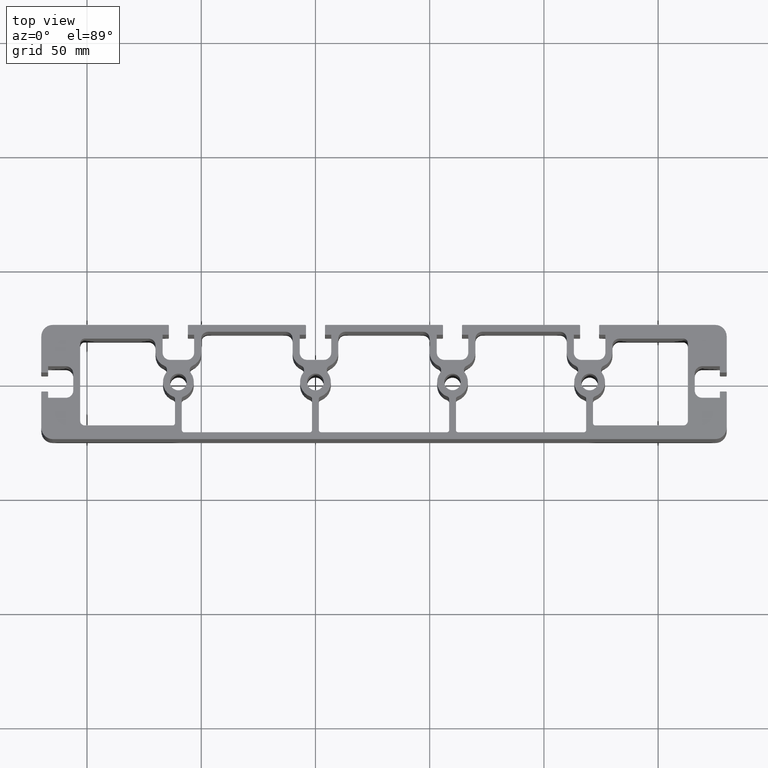
[diagram: clean part render]
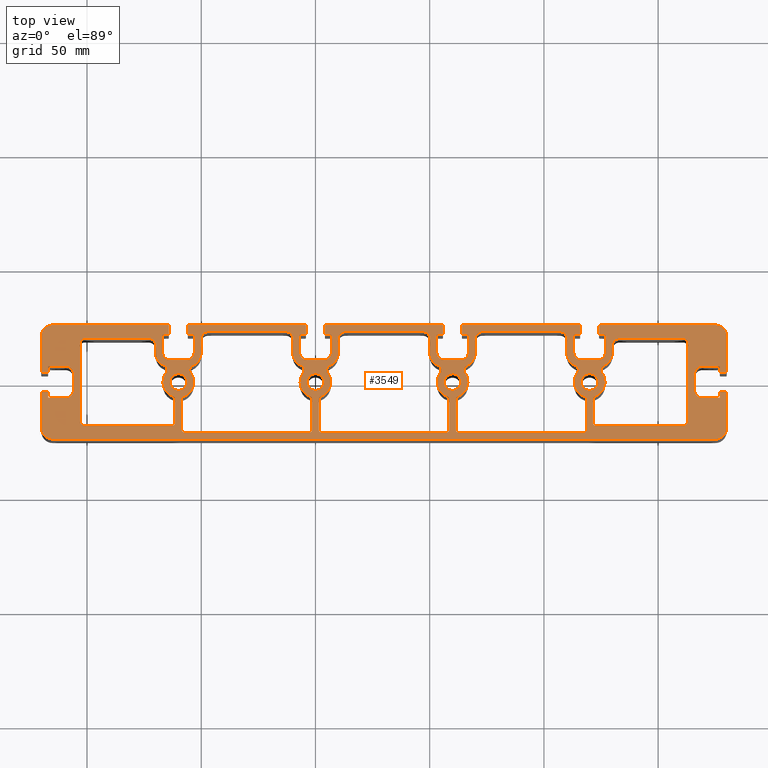
[diagram: same view with one face highlighted and labeled with its STEP entity id]
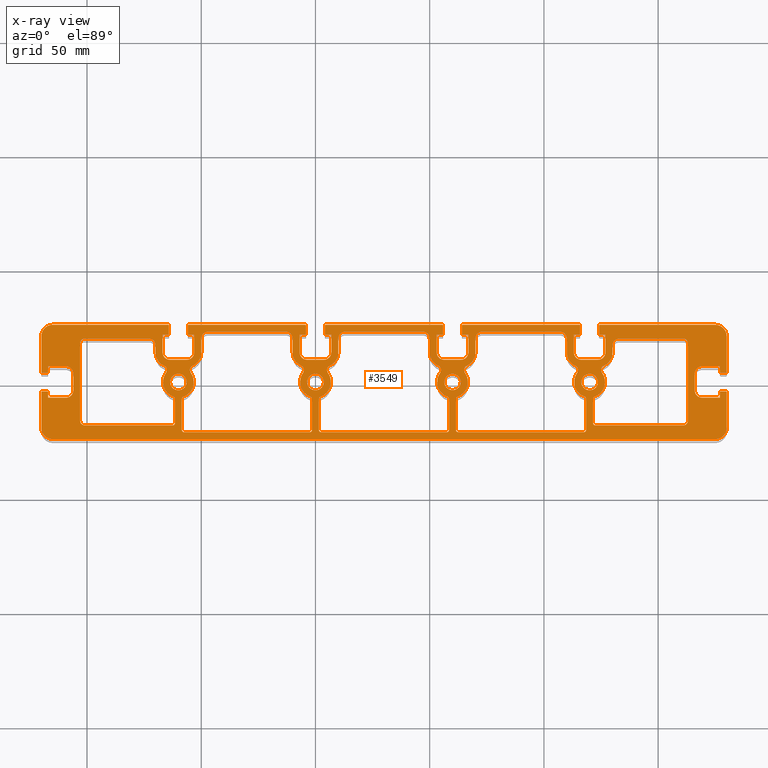
[diagram: x-ray of the same camera — body ghosted, the highlighted face saturated]
A machine part, top view. The second image highlights one B-rep face of the part: STEP entity #3549.
The next image is the same camera in x-ray: the body ghosted, the highlighted face saturated — about 0% of this face is hidden behind the body in this view.
In plain terms, the highlighted planar face has unit normal (0, 0, 1).
Its self-contained STEP definition (entity closure, byte-faithful):
#19=FACE_BOUND('',#478,.T.);
#20=FACE_BOUND('',#479,.T.);
#21=FACE_BOUND('',#480,.T.);
#22=FACE_BOUND('',#481,.T.);
#23=FACE_BOUND('',#482,.T.);
#24=FACE_BOUND('',#483,.T.);
#25=FACE_BOUND('',#484,.T.);
#26=FACE_BOUND('',#485,.T.);
#27=FACE_BOUND('',#486,.T.);
#117=PLANE('',#3921);
#295=FACE_OUTER_BOUND('',#477,.T.);
#477=EDGE_LOOP('',(#2925,#2926,#2927,#2928,#2929,#2930,#2931,#2932,#2933,
#2934,#2935,#2936,#2937,#2938,#2939,#2940,#2941,#2942,#2943,#2944,#2945,
#2946,#2947,#2948,#2949,#2950,#2951,#2952,#2953,#2954,#2955,#2956,#2957,
#2958,#2959,#2960,#2961,#2962,#2963,#2964,#2965,#2966,#2967,#2968,#2969,
#2970,#2971,#2972,#2973,#2974,#2975,#2976,#2977,#2978,#2979,#2980,#2981,
#2982,#2983,#2984,#2985,#2986,#2987,#2988,#2989,#2990,#2991,#2992,#2993,
#2994,#2995,#2996,#2997,#2998,#2999,#3000,#3001,#3002,#3003,#3004,#3005,
#3006,#3007,#3008,#3009,#3010,#3011,#3012,#3013,#3014,#3015,#3016));
#478=EDGE_LOOP('',(#3017,#3018,#3019,#3020,#3021,#3022,#3023,#3024,#3025,
#3026,#3027,#3028,#3029,#3030,#3031,#3032,#3033,#3034));
#479=EDGE_LOOP('',(#3035,#3036,#3037,#3038,#3039,#3040,#3041,#3042,#3043,
#3044,#3045,#3046,#3047,#3048,#3049,#3050,#3051,#3052));
#480=EDGE_LOOP('',(#3053,#3054,#3055,#3056,#3057,#3058,#3059,#3060,#3061,
#3062,#3063,#3064,#3065,#3066,#3067,#3068,#3069,#3070));
#481=EDGE_LOOP('',(#3071,#3072,#3073,#3074,#3075,#3076,#3077,#3078,#3079,
#3080,#3081,#3082,#3083));
#482=EDGE_LOOP('',(#3084,#3085,#3086,#3087,#3088,#3089,#3090,#3091,#3092,
#3093,#3094,#3095,#3096));
#483=EDGE_LOOP('',(#3097));
#484=EDGE_LOOP('',(#3098));
#485=EDGE_LOOP('',(#3099));
#486=EDGE_LOOP('',(#3100));
#503=LINE('',#5024,#835);
#507=LINE('',#5036,#839);
#511=LINE('',#5048,#843);
#518=LINE('',#5078,#850);
#522=LINE('',#5090,#854);
#526=LINE('',#5102,#858);
#529=LINE('',#5113,#861);
#534=LINE('',#5126,#866);
#538=LINE('',#5138,#870);
#545=LINE('',#5168,#877);
#549=LINE('',#5180,#881);
#553=LINE('',#5192,#885);
#559=LINE('',#5221,#891);
#564=LINE('',#5234,#896);
#568=LINE('',#5246,#900);
#575=LINE('',#5276,#907);
#579=LINE('',#5288,#911);
#583=LINE('',#5300,#915);
#591=LINE('',#5336,#923);
#595=LINE('',#5348,#927);
#602=LINE('',#5378,#934);
#606=LINE('',#5390,#938);
#609=LINE('',#5399,#941);
#612=LINE('',#5407,#944);
#617=LINE('',#5420,#949);
#621=LINE('',#5432,#953);
#628=LINE('',#5462,#960);
#632=LINE('',#5474,#964);
#635=LINE('',#5505,#967);
#639=LINE('',#5517,#971);
#643=LINE('',#5529,#975);
#646=LINE('',#5535,#978);
#650=LINE('',#5547,#982);
#654=LINE('',#5559,#986);
#657=LINE('',#5565,#989);
#661=LINE('',#5577,#993);
#665=LINE('',#5589,#997);
#669=LINE('',#5601,#1001);
#673=LINE('',#5613,#1005);
#676=LINE('',#5619,#1008);
#680=LINE('',#5631,#1012);
#684=LINE('',#5643,#1016);
#687=LINE('',#5649,#1019);
#691=LINE('',#5661,#1023);
#695=LINE('',#5673,#1027);
#699=LINE('',#5685,#1031);
#703=LINE('',#5697,#1035);
#706=LINE('',#5703,#1038);
#710=LINE('',#5715,#1042);
#714=LINE('',#5727,#1046);
#717=LINE('',#5733,#1049);
#721=LINE('',#5745,#1053);
#725=LINE('',#5757,#1057);
#729=LINE('',#5769,#1061);
#733=LINE('',#5781,#1065);
#736=LINE('',#5787,#1068);
#740=LINE('',#5799,#1072);
#744=LINE('',#5811,#1076);
#747=LINE('',#5817,#1079);
#751=LINE('',#5829,#1083);
#755=LINE('',#5841,#1087);
#759=LINE('',#5853,#1091);
#763=LINE('',#5865,#1095);
#767=LINE('',#5877,#1099);
#770=LINE('',#5883,#1102);
#774=LINE('',#5895,#1106);
#778=LINE('',#5907,#1110);
#781=LINE('',#5913,#1113);
#785=LINE('',#5925,#1117);
#789=LINE('',#5937,#1121);
#793=LINE('',#5949,#1125);
#797=LINE('',#5961,#1129);
#801=LINE('',#5973,#1133);
#805=LINE('',#5985,#1137);
#808=LINE('',#5991,#1140);
#812=LINE('',#6003,#1144);
#816=LINE('',#6015,#1148);
#819=LINE('',#6021,#1151);
#823=LINE('',#6033,#1155);
#827=LINE('',#6045,#1159);
#835=VECTOR('',#3951,13.6642996244392);
#839=VECTOR('',#3963,54.9999999999998);
#843=VECTOR('',#3975,13.664299624439);
#850=VECTOR('',#4008,6.10000000000039);
#854=VECTOR('',#4020,34.);
#858=VECTOR('',#4032,6.10000000000035);
#861=VECTOR('',#4043,13.6642996244392);
#866=VECTOR('',#4056,54.9999999999999);
#870=VECTOR('',#4068,13.6642996244387);
#877=VECTOR('',#4101,6.10000000000033);
#881=VECTOR('',#4113,34.0000000000001);
#885=VECTOR('',#4125,6.10000000000046);
#891=VECTOR('',#4157,6.10000000000035);
#896=VECTOR('',#4170,34.0000000000018);
#900=VECTOR('',#4182,6.10000000000035);
#907=VECTOR('',#4215,13.6642996244391);
#911=VECTOR('',#4227,55.0000000000018);
#915=VECTOR('',#4239,13.664299624439);
#923=VECTOR('',#4279,38.4999999999999);
#927=VECTOR('',#4291,10.6642996244388);
#934=VECTOR('',#4324,3.10000000000061);
#938=VECTOR('',#4336,28.0000000000002);
#941=VECTOR('',#4347,34.);
#944=VECTOR('',#4352,34.);
#949=VECTOR('',#4365,28.);
#953=VECTOR('',#4377,3.10000000000029);
#960=VECTOR('',#4410,10.6642996244391);
#964=VECTOR('',#4422,38.5000000000001);
#967=VECTOR('',#4457,50.5499999999993);
#971=VECTOR('',#4469,3.70000000000074);
#975=VECTOR('',#4481,2.44999999999715);
#978=VECTOR('',#4486,7.80000000000101);
#982=VECTOR('',#4498,7.40000000000148);
#986=VECTOR('',#4510,7.80000000000122);
#989=VECTOR('',#4515,2.45000000000068);
#993=VECTOR('',#4527,3.70000000000072);
#997=VECTOR('',#4539,51.1000000000003);
#1001=VECTOR('',#4551,3.70000000000083);
#1005=VECTOR('',#4563,2.44999999999889);
#1008=VECTOR('',#4568,7.80000000000111);
#1012=VECTOR('',#4580,7.40000000000151);
#1016=VECTOR('',#4592,7.80000000000076);
#1019=VECTOR('',#4597,2.44999999999889);
#1023=VECTOR('',#4609,3.70000000000083);
#1027=VECTOR('',#4621,51.0999999999985);
#1031=VECTOR('',#4633,3.70000000000065);
#1035=VECTOR('',#4645,2.44999999999891);
#1038=VECTOR('',#4650,7.80000000000109);
#1042=VECTOR('',#4662,7.40000000000141);
#1046=VECTOR('',#4674,7.8000000000012);
#1049=VECTOR('',#4679,2.44999999999884);
#1053=VECTOR('',#4691,3.70000000000076);
#1057=VECTOR('',#4703,51.0999999999986);
#1061=VECTOR('',#4715,3.70000000000063);
#1065=VECTOR('',#4727,2.44999999999873);
#1068=VECTOR('',#4732,7.80000000000117);
#1072=VECTOR('',#4744,7.40000000000158);
#1076=VECTOR('',#4756,7.80000000000108);
#1079=VECTOR('',#4761,2.44999999999884);
#1083=VECTOR('',#4773,3.70000000000074);
#1087=VECTOR('',#4785,50.5499999999992);
#1091=VECTOR('',#4797,15.5499999999991);
#1095=VECTOR('',#4809,2.40009839999942);
#1099=VECTOR('',#4821,2.44999999999877);
#1102=VECTOR('',#4826,7.80000000000115);
#1106=VECTOR('',#4838,7.40000000000158);
#1110=VECTOR('',#4850,7.80000000000108);
#1113=VECTOR('',#4855,2.45000000000069);
#1117=VECTOR('',#4867,2.40009839999956);
#1121=VECTOR('',#4879,15.5499999999993);
#1125=VECTOR('',#4891,290.000000000002);
#1129=VECTOR('',#4903,15.5499999999992);
#1133=VECTOR('',#4915,2.40009840000136);
#1137=VECTOR('',#4927,2.45000000000069);
#1140=VECTOR('',#4932,7.79999999999927);
#1144=VECTOR('',#4944,7.40000000000151);
#1148=VECTOR('',#4956,7.79999999999934);
#1151=VECTOR('',#4961,2.44999999999893);
#1155=VECTOR('',#4973,2.40009840000125);
#1159=VECTOR('',#4985,15.5499999999993);
#1162=CIRCLE('',#3555,2.);
#1164=CIRCLE('',#3558,6.75000000000194);
#1166=CIRCLE('',#3561,0.99999999999811);
#1168=CIRCLE('',#3565,1.);
#1170=CIRCLE('',#3569,1.);
#1172=CIRCLE('',#3573,1.);
#1174=CIRCLE('',#3576,6.75000000000116);
#1176=CIRCLE('',#3579,2.);
#1178=CIRCLE('',#3582,6.29999999999928);
#1180=CIRCLE('',#3586,3.);
#1182=CIRCLE('',#3590,3.);
#1184=CIRCLE('',#3594,6.3);
#1186=CIRCLE('',#3598,1.);
#1188=CIRCLE('',#3602,1.);
#1190=CIRCLE('',#3606,1.);
#1192=CIRCLE('',#3609,6.7500000000007);
#1194=CIRCLE('',#3612,2.);
#1196=CIRCLE('',#3615,6.29999999999928);
#1198=CIRCLE('',#3619,3.);
#1200=CIRCLE('',#3623,3.);
#1202=CIRCLE('',#3627,6.3);
#1204=CIRCLE('',#3630,2.);
#1206=CIRCLE('',#3633,6.750000000002);
#1208=CIRCLE('',#3636,1.);
#1210=CIRCLE('',#3640,3.);
#1212=CIRCLE('',#3644,3.);
#1214=CIRCLE('',#3648,6.29999999999932);
#1216=CIRCLE('',#3651,2.);
#1218=CIRCLE('',#3654,6.75000000000182);
#1220=CIRCLE('',#3657,1.);
#1222=CIRCLE('',#3661,1.);
#1224=CIRCLE('',#3665,1.);
#1226=CIRCLE('',#3669,1.);
#1228=CIRCLE('',#3672,6.75000000000081);
#1230=CIRCLE('',#3675,2.);
#1232=CIRCLE('',#3678,6.3);
#1234=CIRCLE('',#3681,2.);
#1236=CIRCLE('',#3685,1.);
#1238=CIRCLE('',#3689,1.00000000000257);
#1240=CIRCLE('',#3692,6.7499999999987);
#1242=CIRCLE('',#3695,2.);
#1244=CIRCLE('',#3698,6.3);
#1246=CIRCLE('',#3702,3.);
#1248=CIRCLE('',#3706,2.);
#1250=CIRCLE('',#3711,2.);
#1252=CIRCLE('',#3715,3.);
#1254=CIRCLE('',#3719,6.2999999999993);
#1256=CIRCLE('',#3722,2.);
#1258=CIRCLE('',#3725,6.75000000000072);
#1260=CIRCLE('',#3728,1.);
#1262=CIRCLE('',#3732,1.);
#1264=CIRCLE('',#3736,2.);
#1265=CIRCLE('',#3738,3.65);
#1267=CIRCLE('',#3741,3.65);
#1269=CIRCLE('',#3744,3.65);
#1271=CIRCLE('',#3747,3.6);
#1274=CIRCLE('',#3752,0.3);
#1276=CIRCLE('',#3756,0.3);
#1278=CIRCLE('',#3761,3.19999999999891);
#1280=CIRCLE('',#3765,3.2);
#1282=CIRCLE('',#3770,0.299999999999274);
#1284=CIRCLE('',#3774,0.3);
#1286=CIRCLE('',#3778,0.299999999999272);
#1288=CIRCLE('',#3782,0.3);
#1290=CIRCLE('',#3787,3.2);
#1292=CIRCLE('',#3791,3.20000000000073);
#1294=CIRCLE('',#3796,0.299999999999274);
#1296=CIRCLE('',#3800,0.3);
#1298=CIRCLE('',#3804,0.299999999999272);
#1300=CIRCLE('',#3808,0.3);
#1302=CIRCLE('',#3813,3.20000000000075);
#1304=CIRCLE('',#3817,3.20000000000073);
#1306=CIRCLE('',#3822,0.299999999999274);
#1308=CIRCLE('',#3826,0.3);
#1310=CIRCLE('',#3830,0.299999999999272);
#1312=CIRCLE('',#3834,0.299999999999274);
#1314=CIRCLE('',#3839,3.2);
#1316=CIRCLE('',#3843,3.1999999999989);
#1318=CIRCLE('',#3848,0.300000000001077);
#1320=CIRCLE('',#3852,0.299999999999272);
#1322=CIRCLE('',#3856,5.);
#1324=CIRCLE('',#3860,0.299999999999272);
#1326=CIRCLE('',#3864,0.3);
#1328=CIRCLE('',#3869,3.20000000000075);
#1330=CIRCLE('',#3873,3.20000000000073);
#1332=CIRCLE('',#3878,0.299999999999272);
#1334=CIRCLE('',#3882,0.299999999999265);
#1336=CIRCLE('',#3886,5.);
#1338=CIRCLE('',#3890,5.);
#1340=CIRCLE('',#3894,0.3);
#1342=CIRCLE('',#3898,0.3);
#1344=CIRCLE('',#3903,3.2);
#1346=CIRCLE('',#3907,3.2);
#1348=CIRCLE('',#3912,0.3);
#1350=CIRCLE('',#3916,0.3);
#1352=CIRCLE('',#3920,5.);
#1355=VERTEX_POINT('',#5002);
#1356=VERTEX_POINT('',#5004);
#1358=VERTEX_POINT('',#5010);
#1360=VERTEX_POINT('',#5016);
#1362=VERTEX_POINT('',#5022);
#1364=VERTEX_POINT('',#5028);
#1366=VERTEX_POINT('',#5034);
#1368=VERTEX_POINT('',#5040);
#1370=VERTEX_POINT('',#5046);
#1372=VERTEX_POINT('',#5052);
#1374=VERTEX_POINT('',#5058);
#1376=VERTEX_POINT('',#5064);
#1378=VERTEX_POINT('',#5070);
#1380=VERTEX_POINT('',#5076);
#1382=VERTEX_POINT('',#5082);
#1384=VERTEX_POINT('',#5088);
#1386=VERTEX_POINT('',#5094);
#1388=VERTEX_POINT('',#5100);
#1391=VERTEX_POINT('',#5110);
#1392=VERTEX_POINT('',#5112);
#1394=VERTEX_POINT('',#5118);
#1396=VERTEX_POINT('',#5124);
#1398=VERTEX_POINT('',#5130);
#1400=VERTEX_POINT('',#5136);
#1402=VERTEX_POINT('',#5142);
#1404=VERTEX_POINT('',#5148);
#1406=VERTEX_POINT('',#5154);
#1408=VERTEX_POINT('',#5160);
#1410=VERTEX_POINT('',#5166);
#1412=VERTEX_POINT('',#5172);
#1414=VERTEX_POINT('',#5178);
#1416=VERTEX_POINT('',#5184);
#1418=VERTEX_POINT('',#5190);
#1420=VERTEX_POINT('',#5196);
#1422=VERTEX_POINT('',#5202);
#1424=VERTEX_POINT('',#5208);
#1427=VERTEX_POINT('',#5218);
#1428=VERTEX_POINT('',#5220);
#1430=VERTEX_POINT('',#5226);
#1432=VERTEX_POINT('',#5232);
#1434=VERTEX_POINT('',#5238);
#1436=VERTEX_POINT('',#5244);
#1438=VERTEX_POINT('',#5250);
#1440=VERTEX_POINT('',#5256);
#1442=VERTEX_POINT('',#5262);
#1444=VERTEX_POINT('',#5268);
#1446=VERTEX_POINT('',#5274);
#1448=VERTEX_POINT('',#5280);
#1450=VERTEX_POINT('',#5286);
#1452=VERTEX_POINT('',#5292);
#1454=VERTEX_POINT('',#5298);
#1456=VERTEX_POINT('',#5304);
#1458=VERTEX_POINT('',#5310);
#1460=VERTEX_POINT('',#5316);
#1463=VERTEX_POINT('',#5326);
#1464=VERTEX_POINT('',#5328);
#1466=VERTEX_POINT('',#5334);
#1468=VERTEX_POINT('',#5340);
#1470=VERTEX_POINT('',#5346);
#1472=VERTEX_POINT('',#5352);
#1474=VERTEX_POINT('',#5358);
#1476=VERTEX_POINT('',#5364);
#1478=VERTEX_POINT('',#5370);
#1480=VERTEX_POINT('',#5376);
#1482=VERTEX_POINT('',#5382);
#1484=VERTEX_POINT('',#5388);
#1486=VERTEX_POINT('',#5394);
#1489=VERTEX_POINT('',#5404);
#1490=VERTEX_POINT('',#5406);
#1492=VERTEX_POINT('',#5412);
#1494=VERTEX_POINT('',#5418);
#1496=VERTEX_POINT('',#5424);
#1498=VERTEX_POINT('',#5430);
#1500=VERTEX_POINT('',#5436);
#1502=VERTEX_POINT('',#5442);
#1504=VERTEX_POINT('',#5448);
#1506=VERTEX_POINT('',#5454);
#1508=VERTEX_POINT('',#5460);
#1510=VERTEX_POINT('',#5466);
#1512=VERTEX_POINT('',#5472);
#1513=VERTEX_POINT('',#5479);
#1515=VERTEX_POINT('',#5484);
#1517=VERTEX_POINT('',#5489);
#1519=VERTEX_POINT('',#5494);
#1523=VERTEX_POINT('',#5502);
#1524=VERTEX_POINT('',#5504);
#1526=VERTEX_POINT('',#5510);
#1528=VERTEX_POINT('',#5516);
#1530=VERTEX_POINT('',#5522);
#1532=VERTEX_POINT('',#5528);
#1534=VERTEX_POINT('',#5534);
#1536=VERTEX_POINT('',#5540);
#1538=VERTEX_POINT('',#5546);
#1540=VERTEX_POINT('',#5552);
#1542=VERTEX_POINT('',#5558);
#1544=VERTEX_POINT('',#5564);
#1546=VERTEX_POINT('',#5570);
#1548=VERTEX_POINT('',#5576);
#1550=VERTEX_POINT('',#5582);
#1552=VERTEX_POINT('',#5588);
#1554=VERTEX_POINT('',#5594);
#1556=VERTEX_POINT('',#5600);
#1558=VERTEX_POINT('',#5606);
#1560=VERTEX_POINT('',#5612);
#1562=VERTEX_POINT('',#5618);
#1564=VERTEX_POINT('',#5624);
#1566=VERTEX_POINT('',#5630);
#1568=VERTEX_POINT('',#5636);
#1570=VERTEX_POINT('',#5642);
#1572=VERTEX_POINT('',#5648);
#1574=VERTEX_POINT('',#5654);
#1576=VERTEX_POINT('',#5660);
#1578=VERTEX_POINT('',#5666);
#1580=VERTEX_POINT('',#5672);
#1582=VERTEX_POINT('',#5678);
#1584=VERTEX_POINT('',#5684);
#1586=VERTEX_POINT('',#5690);
#1588=VERTEX_POINT('',#5696);
#1590=VERTEX_POINT('',#5702);
#1592=VERTEX_POINT('',#5708);
#1594=VERTEX_POINT('',#5714);
#1596=VERTEX_POINT('',#5720);
#1598=VERTEX_POINT('',#5726);
#1600=VERTEX_POINT('',#5732);
#1602=VERTEX_POINT('',#5738);
#1604=VERTEX_POINT('',#5744);
#1606=VERTEX_POINT('',#5750);
#1608=VERTEX_POINT('',#5756);
#1610=VERTEX_POINT('',#5762);
#1612=VERTEX_POINT('',#5768);
#1614=VERTEX_POINT('',#5774);
#1616=VERTEX_POINT('',#5780);
#1618=VERTEX_POINT('',#5786);
#1620=VERTEX_POINT('',#5792);
#1622=VERTEX_POINT('',#5798);
#1624=VERTEX_POINT('',#5804);
#1626=VERTEX_POINT('',#5810);
#1628=VERTEX_POINT('',#5816);
#1630=VERTEX_POINT('',#5822);
#1632=VERTEX_POINT('',#5828);
#1634=VERTEX_POINT('',#5834);
#1636=VERTEX_POINT('',#5840);
#1638=VERTEX_POINT('',#5846);
#1640=VERTEX_POINT('',#5852);
#1642=VERTEX_POINT('',#5858);
#1644=VERTEX_POINT('',#5864);
#1646=VERTEX_POINT('',#5870);
#1648=VERTEX_POINT('',#5876);
#1650=VERTEX_POINT('',#5882);
#1652=VERTEX_POINT('',#5888);
#1654=VERTEX_POINT('',#5894);
#1656=VERTEX_POINT('',#5900);
#1658=VERTEX_POINT('',#5906);
#1660=VERTEX_POINT('',#5912);
#1662=VERTEX_POINT('',#5918);
#1664=VERTEX_POINT('',#5924);
#1666=VERTEX_POINT('',#5930);
#1668=VERTEX_POINT('',#5936);
#1670=VERTEX_POINT('',#5942);
#1672=VERTEX_POINT('',#5948);
#1674=VERTEX_POINT('',#5954);
#1676=VERTEX_POINT('',#5960);
#1678=VERTEX_POINT('',#5966);
#1680=VERTEX_POINT('',#5972);
#1682=VERTEX_POINT('',#5978);
#1684=VERTEX_POINT('',#5984);
#1686=VERTEX_POINT('',#5990);
#1688=VERTEX_POINT('',#5996);
#1690=VERTEX_POINT('',#6002);
#1692=VERTEX_POINT('',#6008);
#1694=VERTEX_POINT('',#6014);
#1696=VERTEX_POINT('',#6020);
#1698=VERTEX_POINT('',#6026);
#1700=VERTEX_POINT('',#6032);
#1702=VERTEX_POINT('',#6038);
#1704=VERTEX_POINT('',#6044);
#1707=EDGE_CURVE('',#1356,#1355,#1162,.T.);
#1711=EDGE_CURVE('',#1355,#1358,#1164,.T.);
#1714=EDGE_CURVE('',#1358,#1360,#1166,.T.);
#1717=EDGE_CURVE('',#1360,#1362,#503,.T.);
#1720=EDGE_CURVE('',#1362,#1364,#1168,.T.);
#1723=EDGE_CURVE('',#1364,#1366,#507,.T.);
#1726=EDGE_CURVE('',#1366,#1368,#1170,.T.);
#1729=EDGE_CURVE('',#1368,#1370,#511,.T.);
#1732=EDGE_CURVE('',#1370,#1372,#1172,.T.);
#1735=EDGE_CURVE('',#1372,#1374,#1174,.T.);
#1738=EDGE_CURVE('',#1374,#1376,#1176,.T.);
#1741=EDGE_CURVE('',#1376,#1378,#1178,.T.);
#1744=EDGE_CURVE('',#1378,#1380,#518,.T.);
#1747=EDGE_CURVE('',#1380,#1382,#1180,.T.);
#1750=EDGE_CURVE('',#1382,#1384,#522,.T.);
#1753=EDGE_CURVE('',#1384,#1386,#1182,.T.);
#1756=EDGE_CURVE('',#1386,#1388,#526,.T.);
#1758=EDGE_CURVE('',#1388,#1356,#1184,.T.);
#1761=EDGE_CURVE('',#1392,#1391,#529,.T.);
#1765=EDGE_CURVE('',#1391,#1394,#1186,.T.);
#1768=EDGE_CURVE('',#1394,#1396,#534,.T.);
#1771=EDGE_CURVE('',#1396,#1398,#1188,.T.);
#1774=EDGE_CURVE('',#1398,#1400,#538,.T.);
#1777=EDGE_CURVE('',#1400,#1402,#1190,.T.);
#1780=EDGE_CURVE('',#1402,#1404,#1192,.T.);
#1783=EDGE_CURVE('',#1404,#1406,#1194,.T.);
#1786=EDGE_CURVE('',#1406,#1408,#1196,.T.);
#1789=EDGE_CURVE('',#1408,#1410,#545,.T.);
#1792=EDGE_CURVE('',#1410,#1412,#1198,.T.);
#1795=EDGE_CURVE('',#1412,#1414,#549,.T.);
#1798=EDGE_CURVE('',#1414,#1416,#1200,.T.);
#1801=EDGE_CURVE('',#1416,#1418,#553,.T.);
#1804=EDGE_CURVE('',#1418,#1420,#1202,.T.);
#1807=EDGE_CURVE('',#1420,#1422,#1204,.T.);
#1810=EDGE_CURVE('',#1422,#1424,#1206,.T.);
#1812=EDGE_CURVE('',#1424,#1392,#1208,.T.);
#1815=EDGE_CURVE('',#1428,#1427,#559,.T.);
#1819=EDGE_CURVE('',#1427,#1430,#1210,.T.);
#1822=EDGE_CURVE('',#1430,#1432,#564,.T.);
#1825=EDGE_CURVE('',#1432,#1434,#1212,.T.);
#1828=EDGE_CURVE('',#1434,#1436,#568,.T.);
#1831=EDGE_CURVE('',#1436,#1438,#1214,.T.);
#1834=EDGE_CURVE('',#1438,#1440,#1216,.T.);
#1837=EDGE_CURVE('',#1440,#1442,#1218,.T.);
#1840=EDGE_CURVE('',#1442,#1444,#1220,.T.);
#1843=EDGE_CURVE('',#1444,#1446,#575,.T.);
#1846=EDGE_CURVE('',#1446,#1448,#1222,.T.);
#1849=EDGE_CURVE('',#1448,#1450,#579,.T.);
#1852=EDGE_CURVE('',#1450,#1452,#1224,.T.);
#1855=EDGE_CURVE('',#1452,#1454,#583,.T.);
#1858=EDGE_CURVE('',#1454,#1456,#1226,.T.);
#1861=EDGE_CURVE('',#1456,#1458,#1228,.T.);
#1864=EDGE_CURVE('',#1458,#1460,#1230,.T.);
#1866=EDGE_CURVE('',#1460,#1428,#1232,.T.);
#1869=EDGE_CURVE('',#1464,#1463,#1234,.T.);
#1873=EDGE_CURVE('',#1463,#1466,#591,.T.);
#1876=EDGE_CURVE('',#1466,#1468,#1236,.T.);
#1879=EDGE_CURVE('',#1468,#1470,#595,.T.);
#1882=EDGE_CURVE('',#1470,#1472,#1238,.T.);
#1885=EDGE_CURVE('',#1472,#1474,#1240,.T.);
#1888=EDGE_CURVE('',#1474,#1476,#1242,.T.);
#1891=EDGE_CURVE('',#1476,#1478,#1244,.T.);
#1894=EDGE_CURVE('',#1478,#1480,#602,.T.);
#1897=EDGE_CURVE('',#1480,#1482,#1246,.T.);
#1900=EDGE_CURVE('',#1482,#1484,#606,.T.);
#1903=EDGE_CURVE('',#1484,#1486,#1248,.T.);
#1905=EDGE_CURVE('',#1486,#1464,#609,.T.);
#1908=EDGE_CURVE('',#1490,#1489,#612,.T.);
#1912=EDGE_CURVE('',#1489,#1492,#1250,.T.);
#1915=EDGE_CURVE('',#1492,#1494,#617,.T.);
#1918=EDGE_CURVE('',#1494,#1496,#1252,.T.);
#1921=EDGE_CURVE('',#1496,#1498,#621,.T.);
#1924=EDGE_CURVE('',#1498,#1500,#1254,.T.);
#1927=EDGE_CURVE('',#1500,#1502,#1256,.T.);
#1930=EDGE_CURVE('',#1502,#1504,#1258,.T.);
#1933=EDGE_CURVE('',#1504,#1506,#1260,.T.);
#1936=EDGE_CURVE('',#1506,#1508,#628,.T.);
#1939=EDGE_CURVE('',#1508,#1510,#1262,.T.);
#1942=EDGE_CURVE('',#1510,#1512,#632,.T.);
#1944=EDGE_CURVE('',#1512,#1490,#1264,.T.);
#1945=EDGE_CURVE('',#1513,#1513,#1265,.T.);
#1947=EDGE_CURVE('',#1515,#1515,#1267,.T.);
#1949=EDGE_CURVE('',#1517,#1517,#1269,.T.);
#1951=EDGE_CURVE('',#1519,#1519,#1271,.T.);
#1955=EDGE_CURVE('',#1524,#1523,#635,.T.);
#1958=EDGE_CURVE('',#1526,#1524,#1274,.T.);
#1961=EDGE_CURVE('',#1528,#1526,#639,.T.);
#1964=EDGE_CURVE('',#1530,#1528,#1276,.T.);
#1967=EDGE_CURVE('',#1532,#1530,#643,.T.);
#1970=EDGE_CURVE('',#1534,#1532,#646,.T.);
#1973=EDGE_CURVE('',#1536,#1534,#1278,.T.);
#1976=EDGE_CURVE('',#1538,#1536,#650,.T.);
#1979=EDGE_CURVE('',#1540,#1538,#1280,.T.);
#1982=EDGE_CURVE('',#1542,#1540,#654,.T.);
#1985=EDGE_CURVE('',#1544,#1542,#657,.T.);
#1988=EDGE_CURVE('',#1546,#1544,#1282,.T.);
#1991=EDGE_CURVE('',#1548,#1546,#661,.T.);
#1994=EDGE_CURVE('',#1550,#1548,#1284,.T.);
#1997=EDGE_CURVE('',#1552,#1550,#665,.T.);
#2000=EDGE_CURVE('',#1554,#1552,#1286,.T.);
#2003=EDGE_CURVE('',#1556,#1554,#669,.T.);
#2006=EDGE_CURVE('',#1558,#1556,#1288,.T.);
#2009=EDGE_CURVE('',#1560,#1558,#673,.T.);
#2012=EDGE_CURVE('',#1562,#1560,#676,.T.);
#2015=EDGE_CURVE('',#1564,#1562,#1290,.T.);
#2018=EDGE_CURVE('',#1566,#1564,#680,.T.);
#2021=EDGE_CURVE('',#1568,#1566,#1292,.T.);
#2024=EDGE_CURVE('',#1570,#1568,#684,.T.);
#2027=EDGE_CURVE('',#1572,#1570,#687,.T.);
#2030=EDGE_CURVE('',#1574,#1572,#1294,.T.);
#2033=EDGE_CURVE('',#1576,#1574,#691,.T.);
#2036=EDGE_CURVE('',#1578,#1576,#1296,.T.);
#2039=EDGE_CURVE('',#1580,#1578,#695,.T.);
#2042=EDGE_CURVE('',#1582,#1580,#1298,.T.);
#2045=EDGE_CURVE('',#1584,#1582,#699,.T.);
#2048=EDGE_CURVE('',#1586,#1584,#1300,.T.);
#2051=EDGE_CURVE('',#1588,#1586,#703,.T.);
#2054=EDGE_CURVE('',#1590,#1588,#706,.T.);
#2057=EDGE_CURVE('',#1592,#1590,#1302,.T.);
#2060=EDGE_CURVE('',#1594,#1592,#710,.T.);
#2063=EDGE_CURVE('',#1596,#1594,#1304,.T.);
#2066=EDGE_CURVE('',#1598,#1596,#714,.T.);
#2069=EDGE_CURVE('',#1600,#1598,#717,.T.);
#2072=EDGE_CURVE('',#1602,#1600,#1306,.T.);
#2075=EDGE_CURVE('',#1604,#1602,#721,.T.);
#2078=EDGE_CURVE('',#1606,#1604,#1308,.T.);
#2081=EDGE_CURVE('',#1608,#1606,#725,.T.);
#2084=EDGE_CURVE('',#1610,#1608,#1310,.T.);
#2087=EDGE_CURVE('',#1612,#1610,#729,.T.);
#2090=EDGE_CURVE('',#1614,#1612,#1312,.T.);
#2093=EDGE_CURVE('',#1616,#1614,#733,.T.);
#2096=EDGE_CURVE('',#1618,#1616,#736,.T.);
#2099=EDGE_CURVE('',#1620,#1618,#1314,.T.);
#2102=EDGE_CURVE('',#1622,#1620,#740,.T.);
#2105=EDGE_CURVE('',#1624,#1622,#1316,.T.);
#2108=EDGE_CURVE('',#1626,#1624,#744,.T.);
#2111=EDGE_CURVE('',#1628,#1626,#747,.T.);
#2114=EDGE_CURVE('',#1630,#1628,#1318,.T.);
#2117=EDGE_CURVE('',#1632,#1630,#751,.T.);
#2120=EDGE_CURVE('',#1634,#1632,#1320,.T.);
#2123=EDGE_CURVE('',#1636,#1634,#755,.T.);
#2126=EDGE_CURVE('',#1638,#1636,#1322,.T.);
#2129=EDGE_CURVE('',#1640,#1638,#759,.T.);
#2132=EDGE_CURVE('',#1642,#1640,#1324,.T.);
#2135=EDGE_CURVE('',#1644,#1642,#763,.T.);
#2138=EDGE_CURVE('',#1646,#1644,#1326,.T.);
#2141=EDGE_CURVE('',#1648,#1646,#767,.T.);
#2144=EDGE_CURVE('',#1650,#1648,#770,.T.);
#2147=EDGE_CURVE('',#1652,#1650,#1328,.T.);
#2150=EDGE_CURVE('',#1654,#1652,#774,.T.);
#2153=EDGE_CURVE('',#1656,#1654,#1330,.T.);
#2156=EDGE_CURVE('',#1658,#1656,#778,.T.);
#2159=EDGE_CURVE('',#1660,#1658,#781,.T.);
#2162=EDGE_CURVE('',#1662,#1660,#1332,.T.);
#2165=EDGE_CURVE('',#1664,#1662,#785,.T.);
#2168=EDGE_CURVE('',#1666,#1664,#1334,.T.);
#2171=EDGE_CURVE('',#1668,#1666,#789,.T.);
#2174=EDGE_CURVE('',#1670,#1668,#1336,.T.);
#2177=EDGE_CURVE('',#1672,#1670,#793,.T.);
#2180=EDGE_CURVE('',#1674,#1672,#1338,.T.);
#2183=EDGE_CURVE('',#1676,#1674,#797,.T.);
#2186=EDGE_CURVE('',#1678,#1676,#1340,.T.);
#2189=EDGE_CURVE('',#1680,#1678,#801,.T.);
#2192=EDGE_CURVE('',#1682,#1680,#1342,.T.);
#2195=EDGE_CURVE('',#1684,#1682,#805,.T.);
#2198=EDGE_CURVE('',#1686,#1684,#808,.T.);
#2201=EDGE_CURVE('',#1688,#1686,#1344,.T.);
#2204=EDGE_CURVE('',#1690,#1688,#812,.T.);
#2207=EDGE_CURVE('',#1692,#1690,#1346,.T.);
#2210=EDGE_CURVE('',#1694,#1692,#816,.T.);
#2213=EDGE_CURVE('',#1696,#1694,#819,.T.);
#2216=EDGE_CURVE('',#1698,#1696,#1348,.T.);
#2219=EDGE_CURVE('',#1700,#1698,#823,.T.);
#2222=EDGE_CURVE('',#1702,#1700,#1350,.T.);
#2225=EDGE_CURVE('',#1704,#1702,#827,.T.);
#2228=EDGE_CURVE('',#1523,#1704,#1352,.T.);
#2925=ORIENTED_EDGE('',*,*,#2228,.T.);
#2926=ORIENTED_EDGE('',*,*,#2225,.T.);
#2927=ORIENTED_EDGE('',*,*,#2222,.T.);
#2928=ORIENTED_EDGE('',*,*,#2219,.T.);
#2929=ORIENTED_EDGE('',*,*,#2216,.T.);
#2930=ORIENTED_EDGE('',*,*,#2213,.T.);
#2931=ORIENTED_EDGE('',*,*,#2210,.T.);
#2932=ORIENTED_EDGE('',*,*,#2207,.T.);
#2933=ORIENTED_EDGE('',*,*,#2204,.T.);
#2934=ORIENTED_EDGE('',*,*,#2201,.T.);
#2935=ORIENTED_EDGE('',*,*,#2198,.T.);
#2936=ORIENTED_EDGE('',*,*,#2195,.T.);
#2937=ORIENTED_EDGE('',*,*,#2192,.T.);
#2938=ORIENTED_EDGE('',*,*,#2189,.T.);
#2939=ORIENTED_EDGE('',*,*,#2186,.T.);
#2940=ORIENTED_EDGE('',*,*,#2183,.T.);
#2941=ORIENTED_EDGE('',*,*,#2180,.T.);
#2942=ORIENTED_EDGE('',*,*,#2177,.T.);
#2943=ORIENTED_EDGE('',*,*,#2174,.T.);
#2944=ORIENTED_EDGE('',*,*,#2171,.T.);
#2945=ORIENTED_EDGE('',*,*,#2168,.T.);
#2946=ORIENTED_EDGE('',*,*,#2165,.T.);
#2947=ORIENTED_EDGE('',*,*,#2162,.T.);
#2948=ORIENTED_EDGE('',*,*,#2159,.T.);
#2949=ORIENTED_EDGE('',*,*,#2156,.T.);
#2950=ORIENTED_EDGE('',*,*,#2153,.T.);
#2951=ORIENTED_EDGE('',*,*,#2150,.T.);
#2952=ORIENTED_EDGE('',*,*,#2147,.T.);
#2953=ORIENTED_EDGE('',*,*,#2144,.T.);
#2954=ORIENTED_EDGE('',*,*,#2141,.T.);
#2955=ORIENTED_EDGE('',*,*,#2138,.T.);
#2956=ORIENTED_EDGE('',*,*,#2135,.T.);
#2957=ORIENTED_EDGE('',*,*,#2132,.T.);
#2958=ORIENTED_EDGE('',*,*,#2129,.T.);
#2959=ORIENTED_EDGE('',*,*,#2126,.T.);
#2960=ORIENTED_EDGE('',*,*,#2123,.T.);
#2961=ORIENTED_EDGE('',*,*,#2120,.T.);
#2962=ORIENTED_EDGE('',*,*,#2117,.T.);
#2963=ORIENTED_EDGE('',*,*,#2114,.T.);
#2964=ORIENTED_EDGE('',*,*,#2111,.T.);
#2965=ORIENTED_EDGE('',*,*,#2108,.T.);
#2966=ORIENTED_EDGE('',*,*,#2105,.T.);
#2967=ORIENTED_EDGE('',*,*,#2102,.T.);
#2968=ORIENTED_EDGE('',*,*,#2099,.T.);
#2969=ORIENTED_EDGE('',*,*,#2096,.T.);
#2970=ORIENTED_EDGE('',*,*,#2093,.T.);
#2971=ORIENTED_EDGE('',*,*,#2090,.T.);
#2972=ORIENTED_EDGE('',*,*,#2087,.T.);
#2973=ORIENTED_EDGE('',*,*,#2084,.T.);
#2974=ORIENTED_EDGE('',*,*,#2081,.T.);
#2975=ORIENTED_EDGE('',*,*,#2078,.T.);
#2976=ORIENTED_EDGE('',*,*,#2075,.T.);
#2977=ORIENTED_EDGE('',*,*,#2072,.T.);
#2978=ORIENTED_EDGE('',*,*,#2069,.T.);
#2979=ORIENTED_EDGE('',*,*,#2066,.T.);
#2980=ORIENTED_EDGE('',*,*,#2063,.T.);
#2981=ORIENTED_EDGE('',*,*,#2060,.T.);
#2982=ORIENTED_EDGE('',*,*,#2057,.T.);
#2983=ORIENTED_EDGE('',*,*,#2054,.T.);
#2984=ORIENTED_EDGE('',*,*,#2051,.T.);
#2985=ORIENTED_EDGE('',*,*,#2048,.T.);
#2986=ORIENTED_EDGE('',*,*,#2045,.T.);
#2987=ORIENTED_EDGE('',*,*,#2042,.T.);
#2988=ORIENTED_EDGE('',*,*,#2039,.T.);
#2989=ORIENTED_EDGE('',*,*,#2036,.T.);
#2990=ORIENTED_EDGE('',*,*,#2033,.T.);
#2991=ORIENTED_EDGE('',*,*,#2030,.T.);
#2992=ORIENTED_EDGE('',*,*,#2027,.T.);
#2993=ORIENTED_EDGE('',*,*,#2024,.T.);
#2994=ORIENTED_EDGE('',*,*,#2021,.T.);
#2995=ORIENTED_EDGE('',*,*,#2018,.T.);
#2996=ORIENTED_EDGE('',*,*,#2015,.T.);
#2997=ORIENTED_EDGE('',*,*,#2012,.T.);
#2998=ORIENTED_EDGE('',*,*,#2009,.T.);
#2999=ORIENTED_EDGE('',*,*,#2006,.T.);
#3000=ORIENTED_EDGE('',*,*,#2003,.T.);
#3001=ORIENTED_EDGE('',*,*,#2000,.T.);
#3002=ORIENTED_EDGE('',*,*,#1997,.T.);
#3003=ORIENTED_EDGE('',*,*,#1994,.T.);
#3004=ORIENTED_EDGE('',*,*,#1991,.T.);
#3005=ORIENTED_EDGE('',*,*,#1988,.T.);
#3006=ORIENTED_EDGE('',*,*,#1985,.T.);
#3007=ORIENTED_EDGE('',*,*,#1982,.T.);
#3008=ORIENTED_EDGE('',*,*,#1979,.T.);
#3009=ORIENTED_EDGE('',*,*,#1976,.T.);
#3010=ORIENTED_EDGE('',*,*,#1973,.T.);
#3011=ORIENTED_EDGE('',*,*,#1970,.T.);
#3012=ORIENTED_EDGE('',*,*,#1967,.T.);
#3013=ORIENTED_EDGE('',*,*,#1964,.T.);
#3014=ORIENTED_EDGE('',*,*,#1961,.T.);
#3015=ORIENTED_EDGE('',*,*,#1958,.T.);
#3016=ORIENTED_EDGE('',*,*,#1955,.T.);
#3017=ORIENTED_EDGE('',*,*,#1707,.T.);
#3018=ORIENTED_EDGE('',*,*,#1711,.T.);
#3019=ORIENTED_EDGE('',*,*,#1714,.T.);
#3020=ORIENTED_EDGE('',*,*,#1717,.T.);
#3021=ORIENTED_EDGE('',*,*,#1720,.T.);
#3022=ORIENTED_EDGE('',*,*,#1723,.T.);
#3023=ORIENTED_EDGE('',*,*,#1726,.T.);
#3024=ORIENTED_EDGE('',*,*,#1729,.T.);
#3025=ORIENTED_EDGE('',*,*,#1732,.T.);
#3026=ORIENTED_EDGE('',*,*,#1735,.T.);
#3027=ORIENTED_EDGE('',*,*,#1738,.T.);
#3028=ORIENTED_EDGE('',*,*,#1741,.T.);
#3029=ORIENTED_EDGE('',*,*,#1744,.T.);
#3030=ORIENTED_EDGE('',*,*,#1747,.T.);
#3031=ORIENTED_EDGE('',*,*,#1750,.T.);
#3032=ORIENTED_EDGE('',*,*,#1753,.T.);
#3033=ORIENTED_EDGE('',*,*,#1756,.T.);
#3034=ORIENTED_EDGE('',*,*,#1758,.T.);
#3035=ORIENTED_EDGE('',*,*,#1761,.T.);
#3036=ORIENTED_EDGE('',*,*,#1765,.T.);
#3037=ORIENTED_EDGE('',*,*,#1768,.T.);
#3038=ORIENTED_EDGE('',*,*,#1771,.T.);
#3039=ORIENTED_EDGE('',*,*,#1774,.T.);
#3040=ORIENTED_EDGE('',*,*,#1777,.T.);
#3041=ORIENTED_EDGE('',*,*,#1780,.T.);
#3042=ORIENTED_EDGE('',*,*,#1783,.T.);
#3043=ORIENTED_EDGE('',*,*,#1786,.T.);
#3044=ORIENTED_EDGE('',*,*,#1789,.T.);
#3045=ORIENTED_EDGE('',*,*,#1792,.T.);
#3046=ORIENTED_EDGE('',*,*,#1795,.T.);
#3047=ORIENTED_EDGE('',*,*,#1798,.T.);
#3048=ORIENTED_EDGE('',*,*,#1801,.T.);
#3049=ORIENTED_EDGE('',*,*,#1804,.T.);
#3050=ORIENTED_EDGE('',*,*,#1807,.T.);
#3051=ORIENTED_EDGE('',*,*,#1810,.T.);
#3052=ORIENTED_EDGE('',*,*,#1812,.T.);
#3053=ORIENTED_EDGE('',*,*,#1815,.T.);
#3054=ORIENTED_EDGE('',*,*,#1819,.T.);
#3055=ORIENTED_EDGE('',*,*,#1822,.T.);
#3056=ORIENTED_EDGE('',*,*,#1825,.T.);
#3057=ORIENTED_EDGE('',*,*,#1828,.T.);
#3058=ORIENTED_EDGE('',*,*,#1831,.T.);
#3059=ORIENTED_EDGE('',*,*,#1834,.T.);
#3060=ORIENTED_EDGE('',*,*,#1837,.T.);
#3061=ORIENTED_EDGE('',*,*,#1840,.T.);
#3062=ORIENTED_EDGE('',*,*,#1843,.T.);
#3063=ORIENTED_EDGE('',*,*,#1846,.T.);
#3064=ORIENTED_EDGE('',*,*,#1849,.T.);
#3065=ORIENTED_EDGE('',*,*,#1852,.T.);
#3066=ORIENTED_EDGE('',*,*,#1855,.T.);
#3067=ORIENTED_EDGE('',*,*,#1858,.T.);
#3068=ORIENTED_EDGE('',*,*,#1861,.T.);
#3069=ORIENTED_EDGE('',*,*,#1864,.T.);
#3070=ORIENTED_EDGE('',*,*,#1866,.T.);
#3071=ORIENTED_EDGE('',*,*,#1869,.T.);
#3072=ORIENTED_EDGE('',*,*,#1873,.T.);
#3073=ORIENTED_EDGE('',*,*,#1876,.T.);
#3074=ORIENTED_EDGE('',*,*,#1879,.T.);
#3075=ORIENTED_EDGE('',*,*,#1882,.T.);
#3076=ORIENTED_EDGE('',*,*,#1885,.T.);
#3077=ORIENTED_EDGE('',*,*,#1888,.T.);
#3078=ORIENTED_EDGE('',*,*,#1891,.T.);
#3079=ORIENTED_EDGE('',*,*,#1894,.T.);
#3080=ORIENTED_EDGE('',*,*,#1897,.T.);
#3081=ORIENTED_EDGE('',*,*,#1900,.T.);
#3082=ORIENTED_EDGE('',*,*,#1903,.T.);
#3083=ORIENTED_EDGE('',*,*,#1905,.T.);
#3084=ORIENTED_EDGE('',*,*,#1908,.T.);
#3085=ORIENTED_EDGE('',*,*,#1912,.T.);
#3086=ORIENTED_EDGE('',*,*,#1915,.T.);
#3087=ORIENTED_EDGE('',*,*,#1918,.T.);
#3088=ORIENTED_EDGE('',*,*,#1921,.T.);
#3089=ORIENTED_EDGE('',*,*,#1924,.T.);
#3090=ORIENTED_EDGE('',*,*,#1927,.T.);
#3091=ORIENTED_EDGE('',*,*,#1930,.T.);
#3092=ORIENTED_EDGE('',*,*,#1933,.T.);
#3093=ORIENTED_EDGE('',*,*,#1936,.T.);
#3094=ORIENTED_EDGE('',*,*,#1939,.T.);
#3095=ORIENTED_EDGE('',*,*,#1942,.T.);
#3096=ORIENTED_EDGE('',*,*,#1944,.T.);
#3097=ORIENTED_EDGE('',*,*,#1945,.T.);
#3098=ORIENTED_EDGE('',*,*,#1947,.T.);
#3099=ORIENTED_EDGE('',*,*,#1949,.T.);
#3100=ORIENTED_EDGE('',*,*,#1951,.T.);
#3549=ADVANCED_FACE('',(#295,#19,#20,#21,#22,#23,#24,#25,#26,#27),#117,
 .T.);
#3555=AXIS2_PLACEMENT_3D('',#5005,#3930,#3931);
#3558=AXIS2_PLACEMENT_3D('',#5012,#3938,#3939);
#3561=AXIS2_PLACEMENT_3D('',#5018,#3945,#3946);
#3565=AXIS2_PLACEMENT_3D('',#5030,#3957,#3958);
#3569=AXIS2_PLACEMENT_3D('',#5042,#3969,#3970);
#3573=AXIS2_PLACEMENT_3D('',#5054,#3981,#3982);
#3576=AXIS2_PLACEMENT_3D('',#5060,#3988,#3989);
#3579=AXIS2_PLACEMENT_3D('',#5066,#3995,#3996);
#3582=AXIS2_PLACEMENT_3D('',#5072,#4002,#4003);
#3586=AXIS2_PLACEMENT_3D('',#5084,#4014,#4015);
#3590=AXIS2_PLACEMENT_3D('',#5096,#4026,#4027);
#3594=AXIS2_PLACEMENT_3D('',#5105,#4037,#4038);
#3598=AXIS2_PLACEMENT_3D('',#5120,#4050,#4051);
#3602=AXIS2_PLACEMENT_3D('',#5132,#4062,#4063);
#3606=AXIS2_PLACEMENT_3D('',#5144,#4074,#4075);
#3609=AXIS2_PLACEMENT_3D('',#5150,#4081,#4082);
#3612=AXIS2_PLACEMENT_3D('',#5156,#4088,#4089);
#3615=AXIS2_PLACEMENT_3D('',#5162,#4095,#4096);
#3619=AXIS2_PLACEMENT_3D('',#5174,#4107,#4108);
#3623=AXIS2_PLACEMENT_3D('',#5186,#4119,#4120);
#3627=AXIS2_PLACEMENT_3D('',#5198,#4131,#4132);
#3630=AXIS2_PLACEMENT_3D('',#5204,#4138,#4139);
#3633=AXIS2_PLACEMENT_3D('',#5210,#4145,#4146);
#3636=AXIS2_PLACEMENT_3D('',#5213,#4151,#4152);
#3640=AXIS2_PLACEMENT_3D('',#5228,#4164,#4165);
#3644=AXIS2_PLACEMENT_3D('',#5240,#4176,#4177);
#3648=AXIS2_PLACEMENT_3D('',#5252,#4188,#4189);
#3651=AXIS2_PLACEMENT_3D('',#5258,#4195,#4196);
#3654=AXIS2_PLACEMENT_3D('',#5264,#4202,#4203);
#3657=AXIS2_PLACEMENT_3D('',#5270,#4209,#4210);
#3661=AXIS2_PLACEMENT_3D('',#5282,#4221,#4222);
#3665=AXIS2_PLACEMENT_3D('',#5294,#4233,#4234);
#3669=AXIS2_PLACEMENT_3D('',#5306,#4245,#4246);
#3672=AXIS2_PLACEMENT_3D('',#5312,#4252,#4253);
#3675=AXIS2_PLACEMENT_3D('',#5318,#4259,#4260);
#3678=AXIS2_PLACEMENT_3D('',#5321,#4265,#4266);
#3681=AXIS2_PLACEMENT_3D('',#5329,#4272,#4273);
#3685=AXIS2_PLACEMENT_3D('',#5342,#4285,#4286);
#3689=AXIS2_PLACEMENT_3D('',#5354,#4297,#4298);
#3692=AXIS2_PLACEMENT_3D('',#5360,#4304,#4305);
#3695=AXIS2_PLACEMENT_3D('',#5366,#4311,#4312);
#3698=AXIS2_PLACEMENT_3D('',#5372,#4318,#4319);
#3702=AXIS2_PLACEMENT_3D('',#5384,#4330,#4331);
#3706=AXIS2_PLACEMENT_3D('',#5396,#4342,#4343);
#3711=AXIS2_PLACEMENT_3D('',#5414,#4359,#4360);
#3715=AXIS2_PLACEMENT_3D('',#5426,#4371,#4372);
#3719=AXIS2_PLACEMENT_3D('',#5438,#4383,#4384);
#3722=AXIS2_PLACEMENT_3D('',#5444,#4390,#4391);
#3725=AXIS2_PLACEMENT_3D('',#5450,#4397,#4398);
#3728=AXIS2_PLACEMENT_3D('',#5456,#4404,#4405);
#3732=AXIS2_PLACEMENT_3D('',#5468,#4416,#4417);
#3736=AXIS2_PLACEMENT_3D('',#5477,#4427,#4428);
#3738=AXIS2_PLACEMENT_3D('',#5480,#4431,#4432);
#3741=AXIS2_PLACEMENT_3D('',#5485,#4437,#4438);
#3744=AXIS2_PLACEMENT_3D('',#5490,#4443,#4444);
#3747=AXIS2_PLACEMENT_3D('',#5495,#4449,#4450);
#3752=AXIS2_PLACEMENT_3D('',#5511,#4463,#4464);
#3756=AXIS2_PLACEMENT_3D('',#5523,#4475,#4476);
#3761=AXIS2_PLACEMENT_3D('',#5541,#4492,#4493);
#3765=AXIS2_PLACEMENT_3D('',#5553,#4504,#4505);
#3770=AXIS2_PLACEMENT_3D('',#5571,#4521,#4522);
#3774=AXIS2_PLACEMENT_3D('',#5583,#4533,#4534);
#3778=AXIS2_PLACEMENT_3D('',#5595,#4545,#4546);
#3782=AXIS2_PLACEMENT_3D('',#5607,#4557,#4558);
#3787=AXIS2_PLACEMENT_3D('',#5625,#4574,#4575);
#3791=AXIS2_PLACEMENT_3D('',#5637,#4586,#4587);
#3796=AXIS2_PLACEMENT_3D('',#5655,#4603,#4604);
#3800=AXIS2_PLACEMENT_3D('',#5667,#4615,#4616);
#3804=AXIS2_PLACEMENT_3D('',#5679,#4627,#4628);
#3808=AXIS2_PLACEMENT_3D('',#5691,#4639,#4640);
#3813=AXIS2_PLACEMENT_3D('',#5709,#4656,#4657);
#3817=AXIS2_PLACEMENT_3D('',#5721,#4668,#4669);
#3822=AXIS2_PLACEMENT_3D('',#5739,#4685,#4686);
#3826=AXIS2_PLACEMENT_3D('',#5751,#4697,#4698);
#3830=AXIS2_PLACEMENT_3D('',#5763,#4709,#4710);
#3834=AXIS2_PLACEMENT_3D('',#5775,#4721,#4722);
#3839=AXIS2_PLACEMENT_3D('',#5793,#4738,#4739);
#3843=AXIS2_PLACEMENT_3D('',#5805,#4750,#4751);
#3848=AXIS2_PLACEMENT_3D('',#5823,#4767,#4768);
#3852=AXIS2_PLACEMENT_3D('',#5835,#4779,#4780);
#3856=AXIS2_PLACEMENT_3D('',#5847,#4791,#4792);
#3860=AXIS2_PLACEMENT_3D('',#5859,#4803,#4804);
#3864=AXIS2_PLACEMENT_3D('',#5871,#4815,#4816);
#3869=AXIS2_PLACEMENT_3D('',#5889,#4832,#4833);
#3873=AXIS2_PLACEMENT_3D('',#5901,#4844,#4845);
#3878=AXIS2_PLACEMENT_3D('',#5919,#4861,#4862);
#3882=AXIS2_PLACEMENT_3D('',#5931,#4873,#4874);
#3886=AXIS2_PLACEMENT_3D('',#5943,#4885,#4886);
#3890=AXIS2_PLACEMENT_3D('',#5955,#4897,#4898);
#3894=AXIS2_PLACEMENT_3D('',#5967,#4909,#4910);
#3898=AXIS2_PLACEMENT_3D('',#5979,#4921,#4922);
#3903=AXIS2_PLACEMENT_3D('',#5997,#4938,#4939);
#3907=AXIS2_PLACEMENT_3D('',#6009,#4950,#4951);
#3912=AXIS2_PLACEMENT_3D('',#6027,#4967,#4968);
#3916=AXIS2_PLACEMENT_3D('',#6039,#4979,#4980);
#3920=AXIS2_PLACEMENT_3D('',#6049,#4991,#4992);
#3921=AXIS2_PLACEMENT_3D('',#6050,#4993,#4994);
#3930=DIRECTION('center_axis',(0.,0.,-1.));
#3931=DIRECTION('ref_axis',(-0.797777487397277,0.602951972052574,0.));
#3938=DIRECTION('center_axis',(0.,0.,1.));
#3939=DIRECTION('ref_axis',(-0.797777487396463,0.60295197205365,0.));
#3945=DIRECTION('center_axis',(0.,0.,-1.));
#3946=DIRECTION('ref_axis',(-1.,5.3290705182108E-14,0.));
#3951=DIRECTION('',(1.26099850089386E-13,-1.,0.));
#3957=DIRECTION('center_axis',(0.,0.,-1.));
#3958=DIRECTION('ref_axis',(0.,1.,0.));
#3963=DIRECTION('',(-1.,-6.45947941600093E-16,0.));
#3969=DIRECTION('center_axis',(0.,0.,-1.));
#3970=DIRECTION('ref_axis',(1.,-3.55271367880051E-14,0.));
#3975=DIRECTION('',(-2.43749710224333E-16,1.,0.));
#3981=DIRECTION('center_axis',(0.,0.,-1.));
#3982=DIRECTION('ref_axis',(0.322580645174213,-0.9465419839389,0.));
#3988=DIRECTION('center_axis',(0.,0.,1.));
#3989=DIRECTION('ref_axis',(0.322580645159254,-0.946541983943998,0.));
#3995=DIRECTION('center_axis',(0.,0.,-1.));
#3996=DIRECTION('ref_axis',(0.395247351173041,-0.91857472825606,0.));
#4002=DIRECTION('center_axis',(0.,0.,1.));
#4003=DIRECTION('ref_axis',(0.395247351170781,-0.918574728257032,0.));
#4008=DIRECTION('',(5.27810946133238E-15,1.,0.));
#4014=DIRECTION('center_axis',(0.,0.,-1.));
#4015=DIRECTION('ref_axis',(3.33066907387546E-14,-1.,0.));
#4020=DIRECTION('',(1.,3.13474736364751E-15,0.));
#4026=DIRECTION('center_axis',(0.,0.,-1.));
#4027=DIRECTION('ref_axis',(-1.,-4.14483262526709E-14,0.));
#4032=DIRECTION('',(-1.1939447609083E-13,-1.,0.));
#4037=DIRECTION('center_axis',(0.,0.,1.));
#4038=DIRECTION('ref_axis',(-1.,8.45884209238221E-15,0.));
#4043=DIRECTION('',(-1.81999783634167E-14,-1.,0.));
#4050=DIRECTION('center_axis',(0.,0.,-1.));
#4051=DIRECTION('ref_axis',(-3.5527136788007E-14,-1.,0.));
#4056=DIRECTION('',(-1.,-2.26081779560032E-15,0.));
#4062=DIRECTION('center_axis',(0.,0.,-1.));
#4063=DIRECTION('ref_axis',(-1.,2.84217094304031E-13,0.));
#4068=DIRECTION('',(8.44998995444373E-15,1.,0.));
#4074=DIRECTION('center_axis',(0.,0.,-1.));
#4075=DIRECTION('ref_axis',(-0.322580645159309,0.946541983943979,0.));
#4081=DIRECTION('center_axis',(0.,0.,1.));
#4082=DIRECTION('ref_axis',(-0.322580645161597,0.946541983943199,0.));
#4088=DIRECTION('center_axis',(0.,0.,-1.));
#4089=DIRECTION('ref_axis',(-0.395247351171101,0.918574728256895,0.));
#4095=DIRECTION('center_axis',(0.,0.,1.));
#4096=DIRECTION('ref_axis',(-0.3952473511711,0.918574728256895,0.));
#4101=DIRECTION('',(2.91206039245927E-14,1.,0.));
#4107=DIRECTION('center_axis',(0.,0.,-1.));
#4108=DIRECTION('ref_axis',(-3.55271367880054E-14,1.,0.));
#4113=DIRECTION('',(1.,1.56737368182375E-15,0.));
#4119=DIRECTION('center_axis',(0.,0.,-1.));
#4120=DIRECTION('ref_axis',(1.,2.36847578586704E-14,0.));
#4125=DIRECTION('',(-1.25218596875746E-13,-1.,0.));
#4131=DIRECTION('center_axis',(0.,0.,1.));
#4132=DIRECTION('ref_axis',(1.,3.38353683695285E-14,0.));
#4138=DIRECTION('center_axis',(0.,0.,-1.));
#4139=DIRECTION('ref_axis',(0.79777748739451,-0.602951972056235,0.));
#4145=DIRECTION('center_axis',(0.,0.,1.));
#4146=DIRECTION('ref_axis',(0.797777487397473,-0.602951972052314,0.));
#4151=DIRECTION('center_axis',(0.,0.,-1.));
#4152=DIRECTION('ref_axis',(1.,1.06581410364015E-13,0.));
#4157=DIRECTION('',(-1.26674627071978E-13,1.,0.));
#4164=DIRECTION('center_axis',(0.,0.,-1.));
#4165=DIRECTION('ref_axis',(8.88178419700123E-15,-1.,0.));
#4170=DIRECTION('',(1.,3.65720525758855E-15,0.));
#4176=DIRECTION('center_axis',(0.,0.,-1.));
#4177=DIRECTION('ref_axis',(-1.,-2.36847578586691E-14,0.));
#4182=DIRECTION('',(-1.54703208349398E-13,-1.,0.));
#4188=DIRECTION('center_axis',(0.,0.,1.));
#4189=DIRECTION('ref_axis',(-1.,1.40980701539718E-14,0.));
#4195=DIRECTION('center_axis',(0.,0.,-1.));
#4196=DIRECTION('ref_axis',(-0.797777487397298,0.602951972052546,0.));
#4202=DIRECTION('center_axis',(0.,0.,1.));
#4203=DIRECTION('ref_axis',(-0.797777487396605,0.602951972053463,0.));
#4209=DIRECTION('center_axis',(0.,0.,-1.));
#4210=DIRECTION('ref_axis',(-1.,3.37507799485984E-13,0.));
#4215=DIRECTION('',(-1.14562363805436E-14,-1.,0.));
#4221=DIRECTION('center_axis',(0.,0.,-1.));
#4222=DIRECTION('ref_axis',(3.55271367880051E-14,1.,0.));
#4227=DIRECTION('',(-1.,9.68921912400105E-16,0.));
#4233=DIRECTION('center_axis',(0.,0.,-1.));
#4234=DIRECTION('ref_axis',(1.,-8.88178419700128E-14,0.));
#4239=DIRECTION('',(4.35499482267477E-14,1.,0.));
#4245=DIRECTION('center_axis',(0.,0.,-1.));
#4246=DIRECTION('ref_axis',(0.322580645174139,-0.946541983938925,0.));
#4252=DIRECTION('center_axis',(0.,0.,1.));
#4253=DIRECTION('ref_axis',(0.322580645159199,-0.946541983944016,0.));
#4259=DIRECTION('center_axis',(0.,0.,-1.));
#4260=DIRECTION('ref_axis',(0.395247351172908,-0.918574728256118,0.));
#4265=DIRECTION('center_axis',(0.,0.,1.));
#4266=DIRECTION('ref_axis',(0.395247351170787,-0.91857472825703,0.));
#4272=DIRECTION('center_axis',(0.,0.,-1.));
#4273=DIRECTION('ref_axis',(1.77635683940026E-14,1.,0.));
#4279=DIRECTION('',(-1.,0.,0.));
#4285=DIRECTION('center_axis',(0.,0.,-1.));
#4286=DIRECTION('ref_axis',(1.,-7.1054273576009E-14,0.));
#4291=DIRECTION('',(-2.48189921881124E-13,1.,0.));
#4297=DIRECTION('center_axis',(0.,0.,-1.));
#4298=DIRECTION('ref_axis',(0.322580645159414,-0.946541983943943,0.));
#4304=DIRECTION('center_axis',(0.,0.,1.));
#4305=DIRECTION('ref_axis',(0.322580645161343,-0.946541983943286,0.));
#4311=DIRECTION('center_axis',(0.,0.,-1.));
#4312=DIRECTION('ref_axis',(0.395247351170784,-0.918574728257031,0.));
#4318=DIRECTION('center_axis',(0.,0.,1.));
#4319=DIRECTION('ref_axis',(0.395247351171151,-0.918574728256873,0.));
#4324=DIRECTION('',(-2.29207334116116E-13,1.,0.));
#4330=DIRECTION('center_axis',(0.,0.,-1.));
#4331=DIRECTION('ref_axis',(2.36847578586697E-14,-1.,0.));
#4336=DIRECTION('',(1.,-3.80647894157194E-15,0.));
#4342=DIRECTION('center_axis',(0.,0.,-1.));
#4343=DIRECTION('ref_axis',(-1.,-1.77635683940023E-14,0.));
#4347=DIRECTION('',(0.,-1.,0.));
#4352=DIRECTION('',(5.2245789394125E-16,1.,0.));
#4359=DIRECTION('center_axis',(0.,0.,-1.));
#4360=DIRECTION('ref_axis',(1.77635683940026E-14,1.,0.));
#4365=DIRECTION('',(1.,-6.34413156928661E-16,0.));
#4371=DIRECTION('center_axis',(0.,0.,-1.));
#4372=DIRECTION('ref_axis',(1.,-3.55271367880064E-14,0.));
#4377=DIRECTION('',(5.7301833529035E-15,-1.,0.));
#4383=DIRECTION('center_axis',(0.,0.,1.));
#4384=DIRECTION('ref_axis',(1.,5.63922806158853E-15,0.));
#4390=DIRECTION('center_axis',(0.,0.,-1.));
#4391=DIRECTION('ref_axis',(0.797777487394259,-0.602951972056566,0.));
#4397=DIRECTION('center_axis',(0.,0.,1.));
#4398=DIRECTION('ref_axis',(0.797777487397391,-0.602951972052423,0.));
#4404=DIRECTION('center_axis',(0.,0.,-1.));
#4405=DIRECTION('ref_axis',(1.,0.,0.));
#4410=DIRECTION('',(-3.33140834739755E-14,-1.,0.));
#4416=DIRECTION('center_axis',(0.,0.,-1.));
#4417=DIRECTION('ref_axis',(2.66453525910043E-14,-1.,0.));
#4422=DIRECTION('',(-1.,-9.22782773714414E-16,0.));
#4427=DIRECTION('center_axis',(0.,0.,-1.));
#4428=DIRECTION('ref_axis',(-1.,0.,0.));
#4431=DIRECTION('center_axis',(0.,0.,-1.));
#4432=DIRECTION('ref_axis',(-1.,0.,0.));
#4437=DIRECTION('center_axis',(0.,0.,-1.));
#4438=DIRECTION('ref_axis',(-1.,0.,0.));
#4443=DIRECTION('center_axis',(0.,0.,-1.));
#4444=DIRECTION('ref_axis',(-1.,0.,0.));
#4449=DIRECTION('center_axis',(0.,0.,-1.));
#4450=DIRECTION('ref_axis',(-1.,0.,0.));
#4457=DIRECTION('',(-1.,-1.37048302149576E-14,0.));
#4463=DIRECTION('center_axis',(0.,0.,1.));
#4464=DIRECTION('ref_axis',(1.,1.77635683940092E-13,0.));
#4469=DIRECTION('',(-3.12062688002684E-13,1.,0.));
#4475=DIRECTION('center_axis',(0.,0.,1.));
#4476=DIRECTION('ref_axis',(-3.55271367880058E-12,-1.,0.));
#4481=DIRECTION('',(1.,-2.90017443167725E-13,0.));
#4486=DIRECTION('',(2.25460675770003E-13,1.,0.));
#4492=DIRECTION('center_axis',(0.,0.,-1.));
#4493=DIRECTION('ref_axis',(1.,1.6653345369383E-14,0.));
#4498=DIRECTION('',(-1.,1.58431826216747E-13,0.));
#4504=DIRECTION('center_axis',(0.,0.,-1.));
#4505=DIRECTION('ref_axis',(2.4980018054066E-14,1.,0.));
#4510=DIRECTION('',(-7.62922488716655E-14,-1.,0.));
#4515=DIRECTION('',(1.,1.45008721583654E-14,0.));
#4521=DIRECTION('center_axis',(0.,0.,1.));
#4522=DIRECTION('ref_axis',(-1.,-2.96059473234091E-13,0.));
#4527=DIRECTION('',(2.6405304369458E-14,-1.,0.));
#4533=DIRECTION('center_axis',(0.,0.,1.));
#4534=DIRECTION('ref_axis',(-1.48029736616989E-13,1.,0.));
#4539=DIRECTION('',(-1.,1.73811823816071E-15,0.));
#4545=DIRECTION('center_axis',(0.,0.,1.));
#4546=DIRECTION('ref_axis',(1.,0.,0.));
#4551=DIRECTION('',(-2.01640506094037E-13,1.,0.));
#4557=DIRECTION('center_axis',(0.,0.,1.));
#4558=DIRECTION('ref_axis',(1.77635683940008E-13,-1.,0.));
#4563=DIRECTION('',(1.,-2.90017443167519E-13,0.));
#4568=DIRECTION('',(2.30015436896666E-13,1.,0.));
#4574=DIRECTION('center_axis',(0.,0.,-1.));
#4575=DIRECTION('ref_axis',(1.,-1.11022302462516E-14,0.));
#4580=DIRECTION('',(-1.,1.00820253047021E-13,0.));
#4586=DIRECTION('center_axis',(0.,0.,-1.));
#4587=DIRECTION('ref_axis',(6.59194920871036E-15,1.,0.));
#4592=DIRECTION('',(2.48234481403344E-13,-1.,0.));
#4597=DIRECTION('',(1.,-4.35026164751279E-14,0.));
#4603=DIRECTION('center_axis',(0.,0.,1.));
#4604=DIRECTION('ref_axis',(-1.,-2.96059473234091E-13,0.));
#4609=DIRECTION('',(4.80096443081042E-13,-1.,0.));
#4615=DIRECTION('center_axis',(0.,0.,1.));
#4616=DIRECTION('ref_axis',(3.82656869154145E-12,1.,0.));
#4621=DIRECTION('',(-1.,1.46001932005504E-14,0.));
#4627=DIRECTION('center_axis',(0.,0.,1.));
#4628=DIRECTION('ref_axis',(1.,1.77635683940471E-13,0.));
#4633=DIRECTION('',(-2.16043399386479E-13,1.,0.));
#4639=DIRECTION('center_axis',(0.,0.,1.));
#4640=DIRECTION('ref_axis',(0.,-1.,0.));
#4645=DIRECTION('',(1.,-3.19019187484269E-13,0.));
#4650=DIRECTION('',(2.3229281746E-13,1.,0.));
#4656=DIRECTION('center_axis',(0.,0.,-1.));
#4657=DIRECTION('ref_axis',(1.,0.,0.));
#4662=DIRECTION('',(-1.,-4.80096443081058E-15,0.));
#4668=DIRECTION('center_axis',(0.,0.,-1.));
#4669=DIRECTION('ref_axis',(1.11022302462492E-14,1.,0.));
#4674=DIRECTION('',(2.18628534079997E-13,-1.,0.));
#4679=DIRECTION('',(1.,-2.90017443167525E-14,0.));
#4685=DIRECTION('center_axis',(0.,0.,1.));
#4686=DIRECTION('ref_axis',(-1.,4.14483262527667E-13,0.));
#4691=DIRECTION('',(1.9203857723242E-13,-1.,0.));
#4697=DIRECTION('center_axis',(0.,0.,1.));
#4698=DIRECTION('ref_axis',(-3.55271367879974E-13,1.,0.));
#4703=DIRECTION('',(-1.,1.3557322257654E-14,0.));
#4709=DIRECTION('center_axis',(0.,0.,1.));
#4710=DIRECTION('ref_axis',(1.,-1.18423789293612E-13,0.));
#4715=DIRECTION('',(-3.36067510156747E-14,1.,0.));
#4721=DIRECTION('center_axis',(0.,0.,1.));
#4722=DIRECTION('ref_axis',(-4.73695157174532E-13,-1.,0.));
#4727=DIRECTION('',(1.,-1.08756541187827E-13,0.));
#4732=DIRECTION('',(1.52584497743332E-13,1.,0.));
#4738=DIRECTION('center_axis',(0.,0.,-1.));
#4739=DIRECTION('ref_axis',(1.,5.5511151231259E-14,0.));
#4744=DIRECTION('',(-1.,-2.49650150402144E-13,0.));
#4750=DIRECTION('center_axis',(0.,0.,-1.));
#4751=DIRECTION('ref_axis',(-5.55111512312772E-15,1.,0.));
#4756=DIRECTION('',(9.10952225333336E-15,-1.,0.));
#4761=DIRECTION('',(1.,7.3954448007719E-13,0.));
#4767=DIRECTION('center_axis',(0.,0.,1.));
#4768=DIRECTION('ref_axis',(-1.,5.92118946464624E-14,0.));
#4773=DIRECTION('',(-4.70494514219432E-13,-1.,0.));
#4779=DIRECTION('center_axis',(0.,0.,1.));
#4780=DIRECTION('ref_axis',(2.3684757858728E-13,1.,0.));
#4785=DIRECTION('',(-1.,-3.51405902947632E-16,0.));
#4791=DIRECTION('center_axis',(0.,0.,1.));
#4792=DIRECTION('ref_axis',(1.,-3.55271367880045E-14,0.));
#4797=DIRECTION('',(-2.28470333041846E-15,1.,0.));
#4803=DIRECTION('center_axis',(0.,0.,1.));
#4804=DIRECTION('ref_axis',(0.,-1.,0.));
#4809=DIRECTION('',(1.,3.25652068821969E-13,0.));
#4815=DIRECTION('center_axis',(0.,0.,1.));
#4816=DIRECTION('ref_axis',(-1.,4.73695157173382E-13,0.));
#4821=DIRECTION('',(-7.54045352235588E-13,-1.,0.));
#4826=DIRECTION('',(1.,-2.41402339713332E-13,0.));
#4832=DIRECTION('center_axis',(0.,0.,-1.));
#4833=DIRECTION('ref_axis',(-2.22044604924982E-14,-1.,0.));
#4838=DIRECTION('',(-3.84077154464837E-14,1.,0.));
#4844=DIRECTION('center_axis',(0.,0.,-1.));
#4845=DIRECTION('ref_axis',(1.,5.55111512312467E-14,0.));
#4850=DIRECTION('',(-1.,1.366428338E-14,0.));
#4855=DIRECTION('',(5.80034886334613E-14,-1.,0.));
#4861=DIRECTION('center_axis',(0.,0.,1.));
#4862=DIRECTION('ref_axis',(7.10542735762093E-13,1.,0.));
#4867=DIRECTION('',(-1.,-5.18082836762193E-14,0.));
#4873=DIRECTION('center_axis',(0.,0.,1.));
#4874=DIRECTION('ref_axis',(1.,0.,0.));
#4879=DIRECTION('',(1.14235166520922E-14,1.,0.));
#4885=DIRECTION('center_axis',(0.,0.,1.));
#4886=DIRECTION('ref_axis',(0.,-1.,0.));
#4891=DIRECTION('',(1.,-1.22507368234499E-16,0.));
#4897=DIRECTION('center_axis',(0.,0.,1.));
#4898=DIRECTION('ref_axis',(-1.,-2.1316282072803E-14,0.));
#4903=DIRECTION('',(4.11246599475319E-14,-1.,0.));
#4909=DIRECTION('center_axis',(0.,0.,1.));
#4910=DIRECTION('ref_axis',(-5.92118946466763E-14,1.,0.));
#4915=DIRECTION('',(-1.,-2.66442601763215E-13,0.));
#4921=DIRECTION('center_axis',(0.,0.,1.));
#4922=DIRECTION('ref_axis',(1.,-2.36847578586719E-13,0.));
#4927=DIRECTION('',(1.45008721583653E-14,1.,0.));
#4932=DIRECTION('',(-1.,-8.6540461406687E-14,0.));
#4938=DIRECTION('center_axis',(0.,0.,-1.));
#4939=DIRECTION('ref_axis',(2.38697950294408E-13,1.,0.));
#4944=DIRECTION('',(9.60192886162101E-14,-1.,0.));
#4950=DIRECTION('center_axis',(0.,0.,-1.));
#4951=DIRECTION('ref_axis',(-1.,2.38697950294408E-13,0.));
#4956=DIRECTION('',(1.,2.32292817460053E-13,0.));
#4961=DIRECTION('',(-2.90017443167515E-13,1.,0.));
#4967=DIRECTION('center_axis',(0.,0.,1.));
#4968=DIRECTION('ref_axis',(5.92118946466728E-14,-1.,0.));
#4973=DIRECTION('',(1.,3.40454435586345E-13,0.));
#4979=DIRECTION('center_axis',(0.,0.,1.));
#4980=DIRECTION('ref_axis',(-1.,1.18423789293346E-13,0.));
#4985=DIRECTION('',(-9.13881332167373E-15,-1.,0.));
#4991=DIRECTION('center_axis',(0.,0.,1.));
#4992=DIRECTION('ref_axis',(1.42108547152024E-14,1.,0.));
#4993=DIRECTION('center_axis',(0.,0.,1.));
#4994=DIRECTION('ref_axis',(1.,0.,0.));
#5002=CARTESIAN_POINT('',(54.615001960072,4.0699258113632,100.));
#5004=CARTESIAN_POINT('',(53.80994168762,7.11297921198174,100.));
#5005=CARTESIAN_POINT('Origin',(53.0194469852775,5.27582975546826,100.));
#5010=CARTESIAN_POINT('',(57.8225806451733,-6.38915839162367,100.));
#5012=CARTESIAN_POINT('Origin',(59.9999999999996,-1.06581410364015E-13,
100.));
#5016=CARTESIAN_POINT('',(58.499999999998,-7.3357003755609,100.));
#5018=CARTESIAN_POINT('Origin',(57.4999999999999,-7.33570037556085,100.));
#5022=CARTESIAN_POINT('',(58.4999999999998,-21.0000000000001,100.));
#5024=CARTESIAN_POINT('',(58.4999999999983,-9.38580285546052,100.));
#5028=CARTESIAN_POINT('',(57.4999999999998,-22.,100.));
#5030=CARTESIAN_POINT('Origin',(57.4999999999998,-21.,100.));
#5034=CARTESIAN_POINT('',(2.49999999999994,-22.,100.));
#5036=CARTESIAN_POINT('',(16.2499999999995,-22.,100.));
#5040=CARTESIAN_POINT('',(1.49999999999989,-21.,100.));
#5042=CARTESIAN_POINT('Origin',(2.49999999999989,-21.,100.));
#5046=CARTESIAN_POINT('',(1.49999999999989,-7.33570037556101,100.));
#5048=CARTESIAN_POINT('',(1.49999999999988,-2.55365304324277,100.));
#5052=CARTESIAN_POINT('',(2.17741935482567,-6.38915839162165,100.));
#5054=CARTESIAN_POINT('Origin',(2.49999999999989,-7.33570037556055,100.));
#5058=CARTESIAN_POINT('',(5.38499803992866,4.0699258113626,100.));
#5060=CARTESIAN_POINT('Origin',(3.35287353436797E-13,1.4388490399142E-12,
100.));
#5064=CARTESIAN_POINT('',(6.1900583123763,7.11297921198096,100.));
#5066=CARTESIAN_POINT('Origin',(6.98055301472239,5.27582975546883,100.));
#5070=CARTESIAN_POINT('',(9.99999999999993,12.8999999999997,100.));
#5072=CARTESIAN_POINT('Origin',(3.70000000000068,12.8999999999996,100.));
#5076=CARTESIAN_POINT('',(9.99999999999996,19.,100.));
#5078=CARTESIAN_POINT('',(9.99999999999991,10.6141971445378,100.));
#5082=CARTESIAN_POINT('',(12.9999999999999,21.9999999999999,100.));
#5084=CARTESIAN_POINT('Origin',(13.,18.9999999999999,100.));
#5088=CARTESIAN_POINT('',(46.9999999999998,22.,100.));
#5090=CARTESIAN_POINT('',(38.4999999999994,22.,100.));
#5094=CARTESIAN_POINT('',(49.9999999999999,19.,100.));
#5096=CARTESIAN_POINT('Origin',(46.9999999999998,18.9999999999999,100.));
#5100=CARTESIAN_POINT('',(49.9999999999992,12.8999999999997,100.));
#5102=CARTESIAN_POINT('',(49.9999999999986,7.56419714453638,100.));
#5105=CARTESIAN_POINT('Origin',(56.2999999999991,12.8999999999996,100.));
#5110=CARTESIAN_POINT('',(118.5,-21.,100.));
#5112=CARTESIAN_POINT('',(118.5,-7.33570037556085,100.));
#5113=CARTESIAN_POINT('',(118.5,-9.38580285546308,100.));
#5118=CARTESIAN_POINT('',(117.5,-21.9999999999999,100.));
#5120=CARTESIAN_POINT('Origin',(117.5,-21.,100.));
#5124=CARTESIAN_POINT('',(62.4999999999999,-22.0000000000001,100.));
#5126=CARTESIAN_POINT('',(46.2499999999995,-22.0000000000001,100.));
#5130=CARTESIAN_POINT('',(61.4999999999998,-20.9999999999997,100.));
#5132=CARTESIAN_POINT('Origin',(62.4999999999999,-21.,100.));
#5136=CARTESIAN_POINT('',(61.5,-7.33570037556104,100.));
#5138=CARTESIAN_POINT('',(61.5,-2.55365304324292,100.));
#5142=CARTESIAN_POINT('',(62.1774193548406,-6.38915839161738,100.));
#5144=CARTESIAN_POINT('Origin',(62.5,-7.33570037556136,100.));
#5148=CARTESIAN_POINT('',(65.384998039932,4.06992581135492,100.));
#5150=CARTESIAN_POINT('Origin',(59.9999999999996,-1.06581410364015E-13,
100.));
#5154=CARTESIAN_POINT('',(66.1900583123782,7.11297921198186,100.));
#5156=CARTESIAN_POINT('Origin',(66.9805530147203,5.27582975546824,100.));
#5160=CARTESIAN_POINT('',(69.9999999999998,12.8999999999996,100.));
#5162=CARTESIAN_POINT('Origin',(63.7000000000006,12.8999999999995,100.));
#5166=CARTESIAN_POINT('',(70.,19.,100.));
#5168=CARTESIAN_POINT('',(69.9999999999997,10.6141971445371,100.));
#5172=CARTESIAN_POINT('',(72.9999999999998,21.9999999999999,100.));
#5174=CARTESIAN_POINT('Origin',(72.9999999999999,18.9999999999999,100.));
#5178=CARTESIAN_POINT('',(107.,21.9999999999999,100.));
#5180=CARTESIAN_POINT('',(68.4999999999995,21.9999999999999,100.));
#5184=CARTESIAN_POINT('',(110.,19.,100.));
#5186=CARTESIAN_POINT('Origin',(107.,19.,100.));
#5190=CARTESIAN_POINT('',(109.999999999999,12.8999999999996,100.));
#5192=CARTESIAN_POINT('',(109.999999999998,7.56419714453252,100.));
#5196=CARTESIAN_POINT('',(113.809941687619,7.11297921198229,100.));
#5198=CARTESIAN_POINT('Origin',(116.299999999999,12.8999999999998,100.));
#5202=CARTESIAN_POINT('',(114.615001960066,4.06992581135576,100.));
#5204=CARTESIAN_POINT('Origin',(113.019446985277,5.27582975546823,100.));
#5208=CARTESIAN_POINT('',(117.822580645159,-6.38915839161692,100.));
#5210=CARTESIAN_POINT('Origin',(120.000000000001,1.4388490399142E-12,100.));
#5213=CARTESIAN_POINT('Origin',(117.5,-7.33570037556095,100.));
#5218=CARTESIAN_POINT('',(-50.0000000000019,19.,100.));
#5220=CARTESIAN_POINT('',(-50.0000000000011,12.8999999999996,100.));
#5221=CARTESIAN_POINT('',(-50.0000000000008,10.6141971445327,100.));
#5226=CARTESIAN_POINT('',(-47.0000000000019,21.9999999999999,100.));
#5228=CARTESIAN_POINT('Origin',(-47.0000000000019,18.9999999999999,100.));
#5232=CARTESIAN_POINT('',(-13.0000000000001,22.0000000000001,100.));
#5234=CARTESIAN_POINT('',(8.49999999999945,22.0000000000001,100.));
#5238=CARTESIAN_POINT('',(-9.9999999999999,19.,100.));
#5240=CARTESIAN_POINT('Origin',(-13.,19.,100.));
#5244=CARTESIAN_POINT('',(-10.0000000000008,12.8999999999997,100.));
#5246=CARTESIAN_POINT('',(-10.0000000000017,7.56419714454067,100.));
#5250=CARTESIAN_POINT('',(-6.19005831237669,7.11297921198071,100.));
#5252=CARTESIAN_POINT('Origin',(-3.70000000000155,12.8999999999996,100.));
#5256=CARTESIAN_POINT('',(-5.38499803992782,4.06992581136313,100.));
#5258=CARTESIAN_POINT('Origin',(-6.98055301472254,5.27582975546832,100.));
#5262=CARTESIAN_POINT('',(-2.17741935482589,-6.38915839162154,100.));
#5264=CARTESIAN_POINT('Origin',(3.35287353436797E-13,1.4388490399142E-12,
100.));
#5268=CARTESIAN_POINT('',(-1.49999999999992,-7.33570037556097,100.));
#5270=CARTESIAN_POINT('Origin',(-2.50000000000011,-7.33570037556063,100.));
#5274=CARTESIAN_POINT('',(-1.50000000000008,-21.,100.));
#5276=CARTESIAN_POINT('',(-1.49999999999995,-9.3858028554621,100.));
#5280=CARTESIAN_POINT('',(-2.50000000000012,-22.0000000000001,100.));
#5282=CARTESIAN_POINT('Origin',(-2.50000000000008,-21.0000000000001,100.));
#5286=CARTESIAN_POINT('',(-57.5000000000019,-22.,100.));
#5288=CARTESIAN_POINT('',(-13.7500000000014,-22.0000000000001,100.));
#5292=CARTESIAN_POINT('',(-58.500000000002,-20.9999999999999,100.));
#5294=CARTESIAN_POINT('Origin',(-57.500000000002,-21.,100.));
#5298=CARTESIAN_POINT('',(-58.5000000000014,-7.33570037556097,100.));
#5300=CARTESIAN_POINT('',(-58.5000000000012,-2.55365304324082,100.));
#5304=CARTESIAN_POINT('',(-57.8225806451759,-6.38915839162246,100.));
#5306=CARTESIAN_POINT('Origin',(-57.5000000000019,-7.3357003755609,100.));
#5310=CARTESIAN_POINT('',(-54.6150019600741,4.06992581136327,100.));
#5312=CARTESIAN_POINT('Origin',(-60.0000000000007,4.08562073062058E-13,
100.));
#5316=CARTESIAN_POINT('',(-53.8099416876252,7.11297921198033,100.));
#5318=CARTESIAN_POINT('Origin',(-53.0194469852793,5.2758297554681,100.));
#5321=CARTESIAN_POINT('Origin',(-56.3000000000011,12.8999999999996,100.));
#5326=CARTESIAN_POINT('',(161.,-19.,100.));
#5328=CARTESIAN_POINT('',(163.,-17.,100.));
#5329=CARTESIAN_POINT('Origin',(161.,-17.,100.));
#5334=CARTESIAN_POINT('',(122.5,-19.,100.));
#5336=CARTESIAN_POINT('',(76.2499999999995,-19.,100.));
#5340=CARTESIAN_POINT('',(121.5,-18.,100.));
#5342=CARTESIAN_POINT('Origin',(122.5,-18.,100.));
#5346=CARTESIAN_POINT('',(121.499999999997,-7.33570037556111,100.));
#5348=CARTESIAN_POINT('',(121.499999999996,-2.55365304323147,100.));
#5352=CARTESIAN_POINT('',(122.17741935484,-6.38915839161452,100.));
#5354=CARTESIAN_POINT('Origin',(122.5,-7.33570037556097,100.));
#5358=CARTESIAN_POINT('',(125.384998039932,4.06992581135485,100.));
#5360=CARTESIAN_POINT('Origin',(120.000000000001,1.4388490399142E-12,100.));
#5364=CARTESIAN_POINT('',(126.190058312379,7.11297921198229,100.));
#5366=CARTESIAN_POINT('Origin',(126.98055301472,5.27582975546823,100.));
#5370=CARTESIAN_POINT('',(130.000000000001,12.8999999999995,100.));
#5372=CARTESIAN_POINT('Origin',(123.700000000001,12.9000000000006,100.));
#5376=CARTESIAN_POINT('',(130.,16.0000000000001,100.));
#5378=CARTESIAN_POINT('',(130.000000000001,9.11419714454924,100.));
#5382=CARTESIAN_POINT('',(133.,19.,100.));
#5384=CARTESIAN_POINT('Origin',(133.,16.,100.));
#5388=CARTESIAN_POINT('',(161.,18.9999999999999,100.));
#5390=CARTESIAN_POINT('',(95.4999999999996,19.0000000000001,100.));
#5394=CARTESIAN_POINT('',(163.,16.9999999999999,100.));
#5396=CARTESIAN_POINT('Origin',(161.,16.9999999999999,100.));
#5399=CARTESIAN_POINT('',(163.,-7.38580285546229,100.));
#5404=CARTESIAN_POINT('',(-103.000000000002,17.,100.));
#5406=CARTESIAN_POINT('',(-103.000000000002,-17.,100.));
#5407=CARTESIAN_POINT('',(-103.000000000002,9.61419714453779,100.));
#5412=CARTESIAN_POINT('',(-101.000000000002,19.,100.));
#5414=CARTESIAN_POINT('Origin',(-101.000000000002,17.,100.));
#5418=CARTESIAN_POINT('',(-73.0000000000019,19.,100.));
#5420=CARTESIAN_POINT('',(-21.5000000000014,18.9999999999999,100.));
#5424=CARTESIAN_POINT('',(-70.0000000000021,16.,100.));
#5426=CARTESIAN_POINT('Origin',(-73.000000000002,16.0000000000001,100.));
#5430=CARTESIAN_POINT('',(-70.0000000000021,12.8999999999997,100.));
#5432=CARTESIAN_POINT('',(-70.0000000000021,7.56419714453729,100.));
#5436=CARTESIAN_POINT('',(-66.190058312381,7.11297921198197,100.));
#5438=CARTESIAN_POINT('Origin',(-63.7000000000026,12.8999999999997,100.));
#5442=CARTESIAN_POINT('',(-65.3849980399337,4.06992581135469,100.));
#5444=CARTESIAN_POINT('Origin',(-66.9805530147222,5.2758297554678,100.));
#5448=CARTESIAN_POINT('',(-62.1774193548423,-6.38915839161667,100.));
#5450=CARTESIAN_POINT('Origin',(-60.0000000000007,4.08562073062058E-13,
100.));
#5454=CARTESIAN_POINT('',(-61.5000000000016,-7.3357003755609,100.));
#5456=CARTESIAN_POINT('Origin',(-62.500000000002,-7.3357003755609,100.));
#5460=CARTESIAN_POINT('',(-61.500000000002,-18.,100.));
#5462=CARTESIAN_POINT('',(-61.5000000000016,-7.88580285546075,100.));
#5466=CARTESIAN_POINT('',(-62.5000000000019,-19.,100.));
#5468=CARTESIAN_POINT('Origin',(-62.500000000002,-18.,100.));
#5472=CARTESIAN_POINT('',(-101.000000000002,-19.,100.));
#5474=CARTESIAN_POINT('',(-35.5000000000015,-18.9999999999999,100.));
#5477=CARTESIAN_POINT('Origin',(-101.000000000002,-17.,100.));
#5479=CARTESIAN_POINT('',(3.65000000000033,1.43929603599589E-12,100.));
#5480=CARTESIAN_POINT('Origin',(3.35287353436797E-13,1.4388490399142E-12,
100.));
#5484=CARTESIAN_POINT('',(-56.3500000000007,4.09009069143746E-13,100.));
#5485=CARTESIAN_POINT('Origin',(-60.0000000000007,4.08562073062058E-13,
100.));
#5489=CARTESIAN_POINT('',(123.650000000001,1.43929603599589E-12,100.));
#5490=CARTESIAN_POINT('Origin',(120.000000000001,1.4388490399142E-12,100.));
#5494=CARTESIAN_POINT('',(63.5999999999996,-1.06140537516322E-13,100.));
#5495=CARTESIAN_POINT('Origin',(59.9999999999996,-1.06581410364015E-13,
100.));
#5502=CARTESIAN_POINT('',(-115.000000000002,24.9999999999999,100.));
#5504=CARTESIAN_POINT('',(-64.4500000000026,25.0000000000006,100.));
#5505=CARTESIAN_POINT('',(-64.4500000000026,25.0000000000006,100.));
#5510=CARTESIAN_POINT('',(-64.1500000000027,24.7000000000008,100.));
#5511=CARTESIAN_POINT('Origin',(-64.4500000000026,24.7000000000007,100.));
#5516=CARTESIAN_POINT('',(-64.1500000000016,21.,100.));
#5517=CARTESIAN_POINT('',(-64.1500000000016,21.,100.));
#5522=CARTESIAN_POINT('',(-64.4500000000026,20.7,100.));
#5523=CARTESIAN_POINT('Origin',(-64.4500000000016,20.9999999999999,100.));
#5528=CARTESIAN_POINT('',(-66.8999999999998,20.7000000000007,100.));
#5529=CARTESIAN_POINT('',(-66.8999999999998,20.7000000000007,100.));
#5534=CARTESIAN_POINT('',(-66.9000000000015,12.8999999999997,100.));
#5535=CARTESIAN_POINT('',(-66.9000000000015,12.8999999999997,100.));
#5540=CARTESIAN_POINT('',(-63.7000000000027,9.70000000000079,100.));
#5541=CARTESIAN_POINT('Origin',(-63.7000000000026,12.8999999999997,100.));
#5546=CARTESIAN_POINT('',(-56.3000000000012,9.69999999999962,100.));
#5547=CARTESIAN_POINT('',(-56.3000000000012,9.69999999999962,100.));
#5552=CARTESIAN_POINT('',(-53.1000000000011,12.8999999999996,100.));
#5553=CARTESIAN_POINT('Origin',(-56.3000000000011,12.8999999999996,100.));
#5558=CARTESIAN_POINT('',(-53.1000000000005,20.7000000000008,100.));
#5559=CARTESIAN_POINT('',(-53.1000000000005,20.7000000000008,100.));
#5564=CARTESIAN_POINT('',(-55.5500000000012,20.7000000000008,100.));
#5565=CARTESIAN_POINT('',(-55.5500000000012,20.7000000000008,100.));
#5570=CARTESIAN_POINT('',(-55.8500000000004,21.,100.));
#5571=CARTESIAN_POINT('Origin',(-55.5500000000011,21.0000000000001,100.));
#5576=CARTESIAN_POINT('',(-55.8500000000004,24.7000000000007,100.));
#5577=CARTESIAN_POINT('',(-55.8500000000004,24.7000000000007,100.));
#5582=CARTESIAN_POINT('',(-55.5500000000011,25.,100.));
#5583=CARTESIAN_POINT('Origin',(-55.5500000000011,24.7000000000006,100.));
#5588=CARTESIAN_POINT('',(-4.45000000000084,24.9999999999999,100.));
#5589=CARTESIAN_POINT('',(-4.45000000000085,24.9999999999999,100.));
#5594=CARTESIAN_POINT('',(-4.15000000000163,24.7000000000008,100.));
#5595=CARTESIAN_POINT('Origin',(-4.45000000000083,24.7000000000008,100.));
#5600=CARTESIAN_POINT('',(-4.15000000000088,20.9999999999999,100.));
#5601=CARTESIAN_POINT('',(-4.15000000000089,20.9999999999999,100.));
#5606=CARTESIAN_POINT('',(-4.45000000000086,20.7,100.));
#5607=CARTESIAN_POINT('Origin',(-4.45000000000092,21.0000000000001,100.));
#5612=CARTESIAN_POINT('',(-6.89999999999975,20.7000000000007,100.));
#5613=CARTESIAN_POINT('',(-6.89999999999975,20.7000000000007,100.));
#5618=CARTESIAN_POINT('',(-6.90000000000154,12.8999999999996,100.));
#5619=CARTESIAN_POINT('',(-6.90000000000155,12.8999999999996,100.));
#5624=CARTESIAN_POINT('',(-3.70000000000084,9.69999999999958,100.));
#5625=CARTESIAN_POINT('Origin',(-3.70000000000155,12.8999999999996,100.));
#5630=CARTESIAN_POINT('',(3.70000000000067,9.69999999999883,100.));
#5631=CARTESIAN_POINT('',(3.70000000000066,9.69999999999883,100.));
#5636=CARTESIAN_POINT('',(6.90000000000142,12.8999999999999,100.));
#5637=CARTESIAN_POINT('Origin',(3.70000000000068,12.8999999999996,100.));
#5642=CARTESIAN_POINT('',(6.89999999999948,20.7000000000006,100.));
#5643=CARTESIAN_POINT('',(6.89999999999947,20.7000000000006,100.));
#5648=CARTESIAN_POINT('',(4.45000000000059,20.7000000000007,100.));
#5649=CARTESIAN_POINT('',(4.45000000000058,20.7000000000007,100.));
#5654=CARTESIAN_POINT('',(4.15000000000131,20.9999999999999,100.));
#5655=CARTESIAN_POINT('Origin',(4.45000000000057,21.,100.));
#5660=CARTESIAN_POINT('',(4.14999999999953,24.7000000000008,100.));
#5661=CARTESIAN_POINT('',(4.14999999999952,24.7000000000008,100.));
#5666=CARTESIAN_POINT('',(4.45000000000068,25.0000000000007,100.));
#5667=CARTESIAN_POINT('Origin',(4.44999999999952,24.7000000000007,100.));
#5672=CARTESIAN_POINT('',(55.5499999999992,24.9999999999999,100.));
#5673=CARTESIAN_POINT('',(55.5499999999992,24.9999999999999,100.));
#5678=CARTESIAN_POINT('',(55.8499999999983,24.7000000000008,100.));
#5679=CARTESIAN_POINT('Origin',(55.5499999999991,24.7000000000007,100.));
#5684=CARTESIAN_POINT('',(55.8499999999991,21.0000000000001,100.));
#5685=CARTESIAN_POINT('',(55.8499999999991,21.0000000000001,100.));
#5690=CARTESIAN_POINT('',(55.5499999999991,20.6999999999999,100.));
#5691=CARTESIAN_POINT('Origin',(55.5499999999991,21.,100.));
#5696=CARTESIAN_POINT('',(53.1000000000002,20.7000000000007,100.));
#5697=CARTESIAN_POINT('',(53.1000000000002,20.7000000000007,100.));
#5702=CARTESIAN_POINT('',(53.0999999999984,12.8999999999996,100.));
#5703=CARTESIAN_POINT('',(53.0999999999984,12.8999999999996,100.));
#5708=CARTESIAN_POINT('',(56.2999999999992,9.69999999999883,100.));
#5709=CARTESIAN_POINT('Origin',(56.2999999999991,12.8999999999996,100.));
#5714=CARTESIAN_POINT('',(63.7000000000006,9.69999999999887,100.));
#5715=CARTESIAN_POINT('',(63.7000000000006,9.69999999999887,100.));
#5720=CARTESIAN_POINT('',(66.9000000000013,12.8999999999994,100.));
#5721=CARTESIAN_POINT('Origin',(63.7000000000006,12.8999999999995,100.));
#5726=CARTESIAN_POINT('',(66.8999999999996,20.7000000000006,100.));
#5727=CARTESIAN_POINT('',(66.8999999999996,20.7000000000006,100.));
#5732=CARTESIAN_POINT('',(64.4500000000007,20.7000000000007,100.));
#5733=CARTESIAN_POINT('',(64.4500000000007,20.7000000000007,100.));
#5738=CARTESIAN_POINT('',(64.1500000000013,21.0000000000001,100.));
#5739=CARTESIAN_POINT('Origin',(64.4500000000007,21.,100.));
#5744=CARTESIAN_POINT('',(64.1500000000006,24.7000000000009,100.));
#5745=CARTESIAN_POINT('',(64.1500000000006,24.7000000000009,100.));
#5750=CARTESIAN_POINT('',(64.4500000000006,25.0000000000007,100.));
#5751=CARTESIAN_POINT('Origin',(64.4500000000007,24.7000000000006,100.));
#5756=CARTESIAN_POINT('',(115.549999999999,25.,100.));
#5757=CARTESIAN_POINT('',(115.549999999999,25.,100.));
#5762=CARTESIAN_POINT('',(115.849999999998,24.7000000000006,100.));
#5763=CARTESIAN_POINT('Origin',(115.549999999999,24.7000000000006,100.));
#5768=CARTESIAN_POINT('',(115.849999999999,21.,100.));
#5769=CARTESIAN_POINT('',(115.849999999999,21.,100.));
#5774=CARTESIAN_POINT('',(115.549999999999,20.7000000000005,100.));
#5775=CARTESIAN_POINT('Origin',(115.549999999999,20.9999999999998,100.));
#5780=CARTESIAN_POINT('',(113.1,20.7000000000008,100.));
#5781=CARTESIAN_POINT('',(113.1,20.7000000000008,100.));
#5786=CARTESIAN_POINT('',(113.099999999999,12.8999999999996,100.));
#5787=CARTESIAN_POINT('',(113.099999999999,12.8999999999996,100.));
#5792=CARTESIAN_POINT('',(116.299999999999,9.69999999999986,100.));
#5793=CARTESIAN_POINT('Origin',(116.299999999999,12.8999999999998,100.));
#5798=CARTESIAN_POINT('',(123.700000000001,9.70000000000171,100.));
#5799=CARTESIAN_POINT('',(123.700000000001,9.70000000000171,100.));
#5804=CARTESIAN_POINT('',(126.899999999999,12.8999999999996,100.));
#5805=CARTESIAN_POINT('Origin',(123.700000000001,12.9000000000006,100.));
#5810=CARTESIAN_POINT('',(126.899999999999,20.7000000000007,100.));
#5811=CARTESIAN_POINT('',(126.899999999999,20.7000000000007,100.));
#5816=CARTESIAN_POINT('',(124.450000000001,20.6999999999989,100.));
#5817=CARTESIAN_POINT('',(124.450000000001,20.6999999999989,100.));
#5822=CARTESIAN_POINT('',(124.149999999999,21.,100.));
#5823=CARTESIAN_POINT('Origin',(124.450000000001,21.,100.));
#5828=CARTESIAN_POINT('',(124.150000000001,24.7000000000007,100.));
#5829=CARTESIAN_POINT('',(124.150000000001,24.7000000000007,100.));
#5834=CARTESIAN_POINT('',(124.450000000001,24.9999999999999,100.));
#5835=CARTESIAN_POINT('Origin',(124.45,24.7000000000007,100.));
#5840=CARTESIAN_POINT('',(175.,25.,100.));
#5841=CARTESIAN_POINT('',(175.,25.,100.));
#5846=CARTESIAN_POINT('',(180.,19.9999999999997,100.));
#5847=CARTESIAN_POINT('Origin',(175.,19.9999999999999,100.));
#5852=CARTESIAN_POINT('',(180.,4.45000000000061,100.));
#5853=CARTESIAN_POINT('',(180.,4.45000000000061,100.));
#5858=CARTESIAN_POINT('',(179.700000000001,4.15000000000139,100.));
#5859=CARTESIAN_POINT('Origin',(179.700000000001,4.45000000000073,100.));
#5864=CARTESIAN_POINT('',(177.299901600001,4.15000000000061,100.));
#5865=CARTESIAN_POINT('',(177.299901600001,4.15000000000061,100.));
#5870=CARTESIAN_POINT('',(176.9999016,4.45000000000077,100.));
#5871=CARTESIAN_POINT('Origin',(177.2999016,4.45000000000062,100.));
#5876=CARTESIAN_POINT('',(176.999901600002,6.89999999999953,100.));
#5877=CARTESIAN_POINT('',(176.999901600002,6.89999999999953,100.));
#5882=CARTESIAN_POINT('',(169.199901600001,6.90000000000142,100.));
#5883=CARTESIAN_POINT('',(169.199901600001,6.90000000000142,100.));
#5888=CARTESIAN_POINT('',(165.9999016,3.7000000000006,100.));
#5889=CARTESIAN_POINT('Origin',(169.199901600001,3.7000000000007,100.));
#5894=CARTESIAN_POINT('',(165.9999016,-3.70000000000099,100.));
#5895=CARTESIAN_POINT('',(165.9999016,-3.70000000000099,100.));
#5900=CARTESIAN_POINT('',(169.199901600001,-6.90000000000145,100.));
#5901=CARTESIAN_POINT('Origin',(169.199901600001,-3.70000000000081,100.));
#5906=CARTESIAN_POINT('',(176.999901600002,-6.90000000000156,100.));
#5907=CARTESIAN_POINT('',(176.999901600002,-6.90000000000156,100.));
#5912=CARTESIAN_POINT('',(176.999901600002,-4.45000000000087,100.));
#5913=CARTESIAN_POINT('',(176.999901600002,-4.45000000000087,100.));
#5918=CARTESIAN_POINT('',(177.299901600001,-4.15000000000155,100.));
#5919=CARTESIAN_POINT('Origin',(177.299901600001,-4.45000000000071,100.));
#5924=CARTESIAN_POINT('',(179.700000000001,-4.15000000000143,100.));
#5925=CARTESIAN_POINT('',(179.700000000001,-4.15000000000143,100.));
#5930=CARTESIAN_POINT('',(180.,-4.4500000000008,100.));
#5931=CARTESIAN_POINT('Origin',(179.700000000001,-4.4500000000008,100.));
#5936=CARTESIAN_POINT('',(180.,-20.0000000000001,100.));
#5937=CARTESIAN_POINT('',(180.,-20.0000000000001,100.));
#5942=CARTESIAN_POINT('',(175.,-24.9999999999999,100.));
#5943=CARTESIAN_POINT('Origin',(175.,-20.,100.));
#5948=CARTESIAN_POINT('',(-115.000000000002,-24.9999999999999,100.));
#5949=CARTESIAN_POINT('',(-115.000000000002,-24.9999999999999,100.));
#5954=CARTESIAN_POINT('',(-120.000000000002,-20.,100.));
#5955=CARTESIAN_POINT('Origin',(-115.000000000002,-19.9999999999999,100.));
#5960=CARTESIAN_POINT('',(-120.000000000003,-4.45000000000073,100.));
#5961=CARTESIAN_POINT('',(-120.000000000003,-4.45000000000073,100.));
#5966=CARTESIAN_POINT('',(-119.700000000003,-4.15000000000136,100.));
#5967=CARTESIAN_POINT('Origin',(-119.700000000003,-4.45000000000135,100.));
#5972=CARTESIAN_POINT('',(-117.299901600001,-4.15000000000072,100.));
#5973=CARTESIAN_POINT('',(-117.299901600001,-4.15000000000072,100.));
#5978=CARTESIAN_POINT('',(-116.999901600002,-4.45000000000077,100.));
#5979=CARTESIAN_POINT('Origin',(-117.299901600002,-4.4500000000007,100.));
#5984=CARTESIAN_POINT('',(-116.999901600002,-6.90000000000145,100.));
#5985=CARTESIAN_POINT('',(-116.999901600002,-6.90000000000145,100.));
#5990=CARTESIAN_POINT('',(-109.199901600003,-6.90000000000078,100.));
#5991=CARTESIAN_POINT('',(-109.199901600003,-6.90000000000078,100.));
#5996=CARTESIAN_POINT('',(-105.999901600002,-3.70000000000079,100.));
#5997=CARTESIAN_POINT('Origin',(-109.199901600002,-3.70000000000077,100.));
#6002=CARTESIAN_POINT('',(-105.999901600003,3.70000000000072,100.));
#6003=CARTESIAN_POINT('',(-105.999901600003,3.70000000000072,100.));
#6008=CARTESIAN_POINT('',(-109.199901600003,6.90000000000149,100.));
#6009=CARTESIAN_POINT('Origin',(-109.199901600003,3.70000000000148,100.));
#6014=CARTESIAN_POINT('',(-116.999901600002,6.89999999999968,100.));
#6015=CARTESIAN_POINT('',(-116.999901600002,6.89999999999968,100.));
#6020=CARTESIAN_POINT('',(-116.999901600001,4.45000000000075,100.));
#6021=CARTESIAN_POINT('',(-116.999901600001,4.45000000000075,100.));
#6026=CARTESIAN_POINT('',(-117.299901600001,4.1500000000015,100.));
#6027=CARTESIAN_POINT('Origin',(-117.299901600001,4.45000000000151,100.));
#6032=CARTESIAN_POINT('',(-119.700000000003,4.15000000000068,100.));
#6033=CARTESIAN_POINT('',(-119.700000000003,4.15000000000068,100.));
#6038=CARTESIAN_POINT('',(-120.000000000002,4.45000000000073,100.));
#6039=CARTESIAN_POINT('Origin',(-119.700000000002,4.4500000000007,100.));
#6044=CARTESIAN_POINT('',(-120.000000000002,20.,100.));
#6045=CARTESIAN_POINT('',(-120.000000000002,20.,100.));
#6049=CARTESIAN_POINT('Origin',(-115.000000000002,20.0000000000001,100.));
#6050=CARTESIAN_POINT('Origin',(29.9999999999991,2.22839428907547,100.));